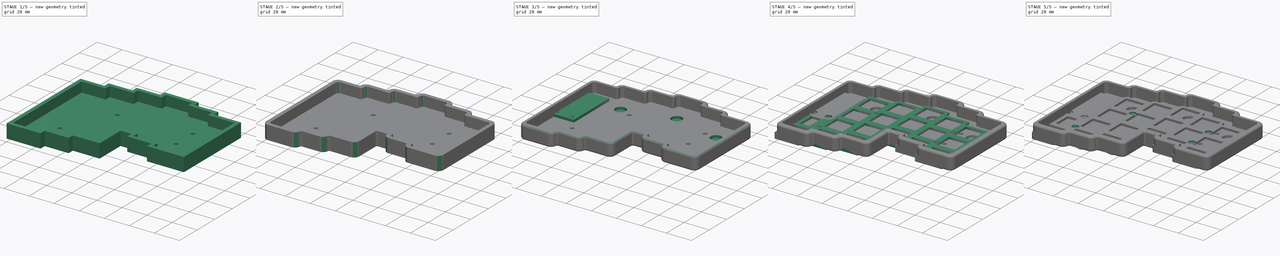
[diagram: build sequence overview — one tinted view per stage of 5, left to right]
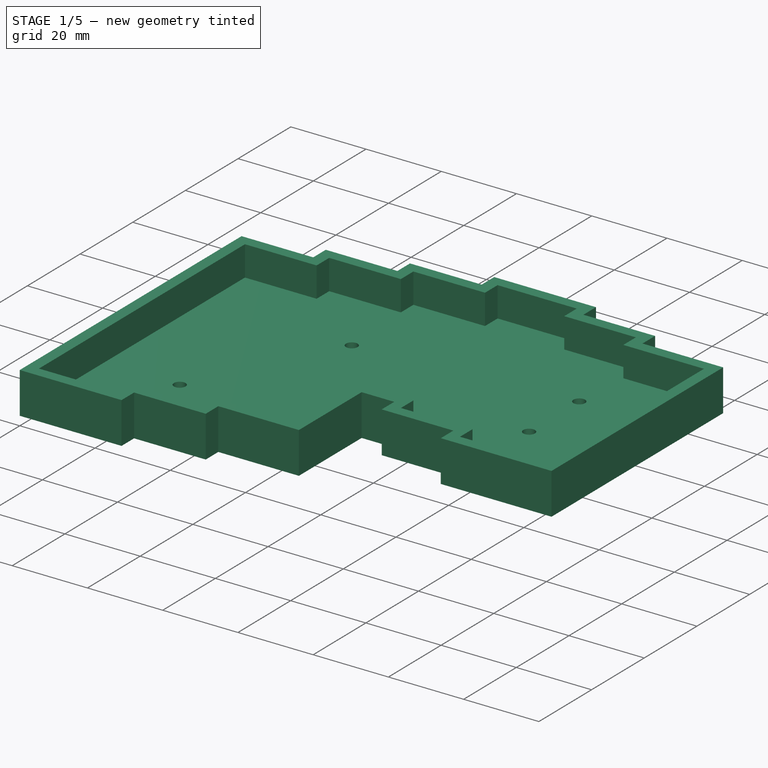
[diagram: stage 1 of 5 — iso view after this stage's code; geometry added in this stage tinted green]
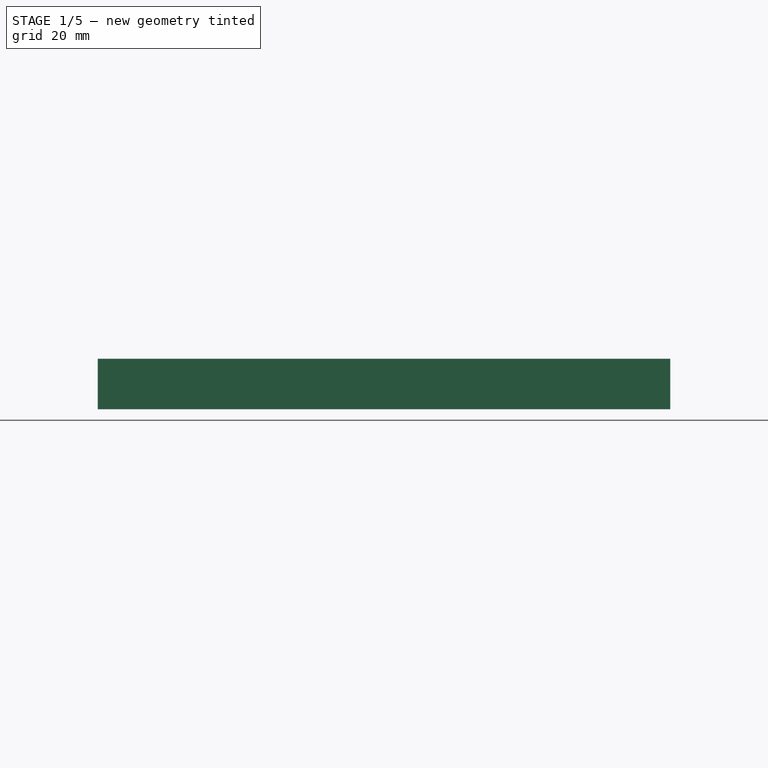
[diagram: stage 1 of 5 — front view after this stage's code; geometry added in this stage tinted green]
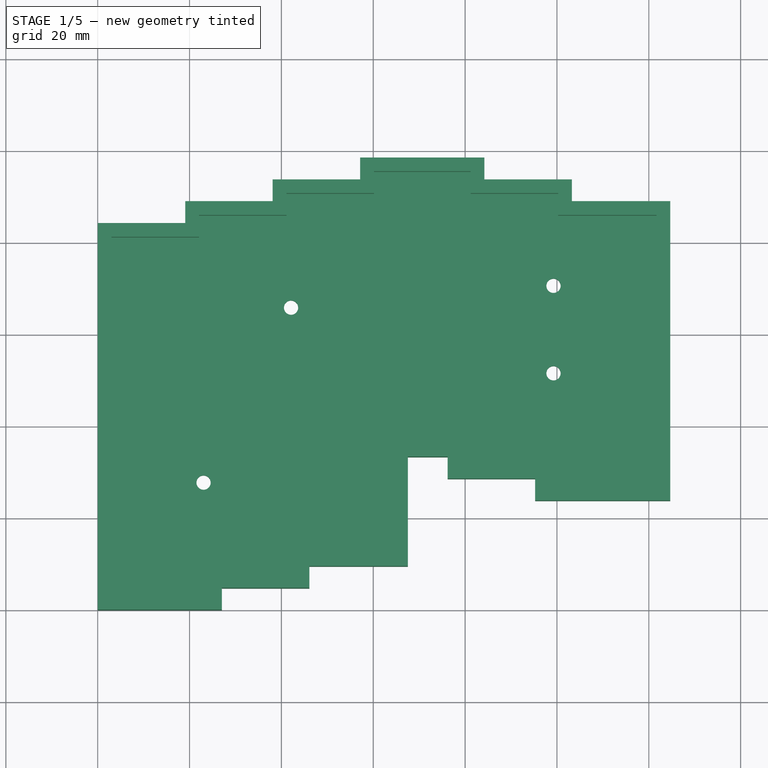
[diagram: stage 1 of 5 — top view after this stage's code; geometry added in this stage tinted green]
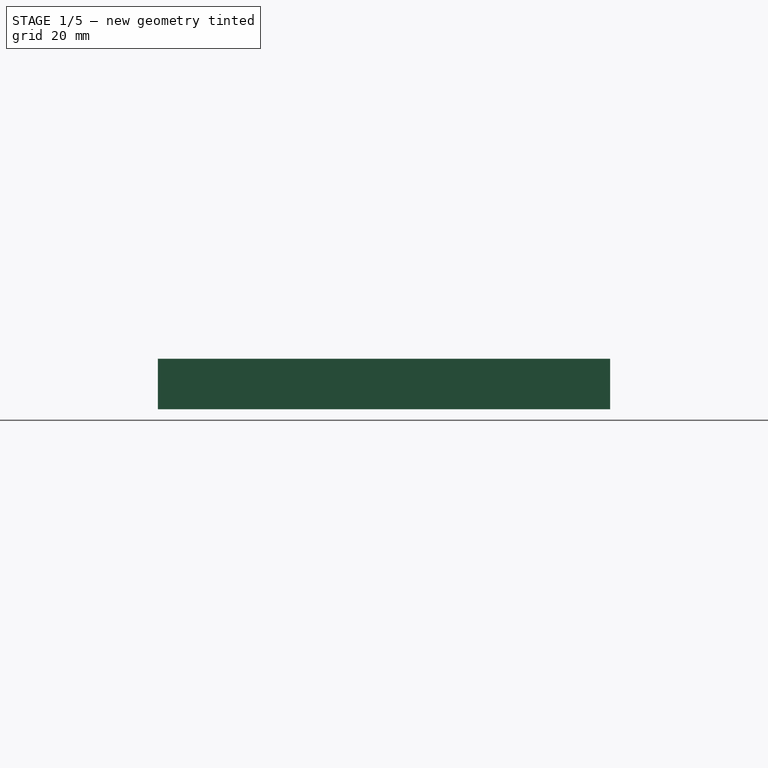
[diagram: stage 1 of 5 — right view after this stage's code; geometry added in this stage tinted green]
FCSTD DOCUMENT  (FreeCAD 0.19R)
Label: splitPCB
License: All rights reserved
LicenseURL: http://en.wikipedia.org/wiki/All_rights_reserved
objects: Sketcher::SketchObject×11, PartDesign::Pocket×9, PartDesign::Fillet×8, PartDesign::Pad×3, PartDesign::Body×3, Spreadsheet::Sheet×1, Part::Feature×1
note: 55 computed .brp shape members not serialized (recipe doc carries the construction recipe); baked Part::Feature solids carry a one-line shape summary decoded from their .brp

FEATURE [Sketcher::SketchObject] Sketch001
  FullyConstrained = true
  MapMode = 5
  Support = -> [XY_Plane001]
  expr: Constraints[65] = Spreadsheet.switch * 1.125 + 2 * (Spreadsheet.airgap + Spreadsheet.border)
  expr: Constraints[64] = Spreadsheet.switch * 1.125
  expr: Constraints[62] = Spreadsheet.switch + 2 * (Spreadsheet.airgap + Spreadsheet.border)
  expr: Constraints[61] = Spreadsheet.switch / 4
  expr: Constraints[63] = Spreadsheet.switch
  expr: Constraints[51] = Spreadsheet.switch * 3 + 2 * (Spreadsheet.airgap + Spreadsheet.border)
  expr: Constraints[52] = Spreadsheet.switch * 4 + 2 * (Spreadsheet.airgap + Spreadsheet.border)
  sketch-geometry (24):
    g0: LineSegment StartX=0 StartY=0 StartZ=0 EndX=27.05 EndY=0 EndZ=0
    g1: LineSegment StartX=27.05 StartY=0 StartZ=0 EndX=27.05 EndY=4.7625 EndZ=0
    g2: LineSegment StartX=27.05 StartY=4.7625 StartZ=0 EndX=46.1 EndY=4.7625 EndZ=0
    g3: LineSegment StartX=46.1 StartY=4.7625 StartZ=0 EndX=46.1 EndY=9.525 EndZ=0
    g4: LineSegment StartX=46.1 StartY=9.525 StartZ=0 EndX=67.5312 EndY=9.525 EndZ=0
    g5: LineSegment StartX=67.5312 StartY=9.525 StartZ=0 EndX=67.5312 EndY=33.3375 EndZ=0
    g6: LineSegment StartX=67.5312 StartY=33.3375 StartZ=0 EndX=76.2 EndY=33.3375 EndZ=0
    g7: LineSegment StartX=76.2 StartY=33.3375 StartZ=0 EndX=76.2 EndY=28.575 EndZ=0
    g8: LineSegment StartX=76.2 StartY=28.575 StartZ=0 EndX=95.25 EndY=28.575 EndZ=0
    g9: LineSegment StartX=95.25 StartY=28.575 StartZ=0 EndX=95.25 EndY=23.8125 EndZ=0
    g10: LineSegment StartX=95.25 StartY=23.8125 StartZ=0 EndX=124.681 EndY=23.8125 EndZ=0
    g11: LineSegment StartX=124.681 StartY=23.8125 StartZ=0 EndX=124.681 EndY=88.9625 EndZ=0
    g12: LineSegment StartX=124.681 StartY=88.9625 StartZ=0 EndX=103.25 EndY=88.9625 EndZ=0
    g13: LineSegment StartX=103.25 StartY=88.9625 StartZ=0 EndX=103.25 EndY=93.725 EndZ=0
    g14: LineSegment StartX=103.25 StartY=93.725 StartZ=0 EndX=84.2 EndY=93.725 EndZ=0
    g15: LineSegment StartX=84.2 StartY=93.725 StartZ=0 EndX=84.2 EndY=98.4875 EndZ=0
    g16: LineSegment StartX=84.2 StartY=98.4875 StartZ=0 EndX=57.15 EndY=98.4875 EndZ=0
    g17: LineSegment StartX=57.15 StartY=98.4875 StartZ=0 EndX=57.15 EndY=93.725 EndZ=0
    g18: LineSegment StartX=57.15 StartY=93.725 StartZ=0 EndX=38.1 EndY=93.725 EndZ=0
    g19: LineSegment StartX=38.1 StartY=93.725 StartZ=0 EndX=38.1 EndY=88.9625 EndZ=0
    g20: LineSegment StartX=38.1 StartY=88.9625 StartZ=0 EndX=19.05 EndY=88.9625 EndZ=0
    g21: LineSegment StartX=19.05 StartY=88.9625 StartZ=0 EndX=19.05 EndY=84.2 EndZ=0
    g22: LineSegment StartX=19.05 StartY=84.2 StartZ=0 EndX=0 EndY=84.2 EndZ=0
    g23: LineSegment StartX=0 StartY=84.2 StartZ=0 EndX=0 EndY=0 EndZ=0
  constraints (71):
    c: Horizontal(g0)
    c: Coincident(g1,g0)
    c: Vertical(g1)
    c: Coincident(g2,g1)
    c: Horizontal(g2)
    c: Coincident(g3,g2)
    c: Coincident(g4,g3)
    c: Horizontal(g4)
    c: Vertical(g5)
    c: Vertical(g3)
    c: Coincident(g4,g5)
    c: Coincident(g6,g5)
    c: Horizontal(g6)
    c: Coincident(g7,g6)
    c: Vertical(g7)
    c: Coincident(g8,g7)
    c: Horizontal(g8)
    c: Vertical(g9)
    c: Horizontal(g10)
    c: Coincident(g11,g10)
    c: Vertical(g11)
    c: Coincident(g10,g9)
    c: Coincident(g8,g9)
    c: Coincident(g12,g11)
    c: Horizontal(g12)
    c: Coincident(g13,g12)
    c: Vertical(g13)
    c: Coincident(g14,g13)
    c: Horizontal(g14)
    c: Coincident(g15,g14)
    c: Vertical(g15)
    c: Coincident(g16,g15)
    c: Horizontal(g16)
    c: Coincident(g17,g16)
    c: Vertical(g17)
    c: Coincident(g18,g17)
    c: Horizontal(g18)
    c: Coincident(g19,g18)
    c: Vertical(g19)
    c: Coincident(g20,g19)
    c: Horizontal(g20)
    c: Coincident(g21,g20)
    c: Vertical(g21)
    c: Coincident(g22,g21)
    c: Horizontal(g22)
    c: Coincident(g23,g22)
    c: Coincident(g23,g0)
    c: Vertical(g23)
    c: Equal(g0,g16)
    c: Equal(g18,g20)
    c: Equal(g20,g22)
    c: DistanceY(g11,g11) = 65.15
    c: DistanceY(g23,g23) = 84.2
    c: Equal(g13,g15)
    c: Equal(g15,g17)
    c: Equal(g17,g19)
    c: Equal(g19,g21)
    c: Equal(g21,g1)
    c: Equal(g1,g3)
    c: Equal(g3,g7)
    c: Equal(g7,g9)
    c: DistanceY(g13,g13) = 4.7625
    c: DistanceX(g0,g0) = 27.05
    c: DistanceX(g22,g22) = 19.05
    c: DistanceX(g12,g12) = 21.4313
    c: DistanceX(g10,g10) = 29.4313
    c: Equal(g14,g18)
    c: Equal(g22,g2)
    c: Coincident(g0,g-1)
    c: Equal(g2,g8)
    c: Equal(g12,g4)
FEATURE [PartDesign::Pad] Pad001
  Direction = (1,1,1)
  Length = 11
  Length2 = 100
  Profile = -> Sketch001
  Type = 0
  expr: Length = Spreadsheet.case_h
FEATURE [Sketcher::SketchObject] Sketch002
  FullyConstrained = true
  MapMode = 5
  Placement = pos=(0,0,11) rot=(0,0,1;0rad)
  Support = -> [Pad001]
  expr: Constraints[73] = Spreadsheet.switch * 1.125
  expr: Constraints[59] = Spreadsheet.switch / 4
  expr: Constraints[68] = Spreadsheet.switch + 2 * Spreadsheet.airgap
  expr: Constraints[70] = Spreadsheet.switch
  expr: Constraints[71] = Spreadsheet.switch * 1.25
  expr: Constraints[60] = Spreadsheet.switch * 4 + 2 * Spreadsheet.airgap
  expr: Constraints[72] = Spreadsheet.switch * 1.125 + Spreadsheet.airgap * 2
  expr: Constraints[67] = Spreadsheet.border
  sketch-geometry (26):
    g0: LineSegment StartX=3 StartY=3 StartZ=0 EndX=24.05 EndY=3 EndZ=0
    g1: LineSegment StartX=24.05 StartY=3 StartZ=0 EndX=24.05 EndY=7.7625 EndZ=0
    g2: LineSegment StartX=24.05 StartY=7.7625 StartZ=0 EndX=43.1 EndY=7.7625 EndZ=0
    g3: LineSegment StartX=43.1 StartY=7.7625 StartZ=0 EndX=43.1 EndY=12.525 EndZ=0
    g4: LineSegment StartX=43.1 StartY=12.525 StartZ=0 EndX=64.5312 EndY=12.525 EndZ=0
    g5: LineSegment StartX=64.5312 StartY=12.525 StartZ=0 EndX=64.5312 EndY=36.3375 EndZ=0
    g6: LineSegment StartX=64.5312 StartY=36.3375 StartZ=0 EndX=79.2 EndY=36.3375 EndZ=0
    g7: LineSegment StartX=79.2 StartY=36.3375 StartZ=0 EndX=79.2 EndY=31.575 EndZ=0
    g8: LineSegment StartX=79.2 StartY=31.575 StartZ=0 EndX=98.25 EndY=31.575 EndZ=0
    g9: LineSegment StartX=98.25 StartY=31.575 StartZ=0 EndX=98.25 EndY=26.8125 EndZ=0
    g10: LineSegment StartX=98.25 StartY=26.8125 StartZ=0 EndX=121.681 EndY=26.8125 EndZ=0
    g11: LineSegment StartX=121.681 StartY=26.8125 StartZ=0 EndX=121.681 EndY=85.9625 EndZ=0
    g12: LineSegment StartX=121.681 StartY=85.9625 StartZ=0 EndX=100.25 EndY=85.9625 EndZ=0
    g13: LineSegment StartX=100.25 StartY=85.9625 StartZ=0 EndX=100.25 EndY=90.725 EndZ=0
    g14: LineSegment StartX=100.25 StartY=90.725 StartZ=0 EndX=81.2 EndY=90.725 EndZ=0
    g15: LineSegment StartX=81.2 StartY=90.725 StartZ=0 EndX=81.2 EndY=95.4875 EndZ=0
    g16: LineSegment StartX=81.2 StartY=95.4875 StartZ=0 EndX=60.15 EndY=95.4875 EndZ=0
    g17: LineSegment StartX=60.15 StartY=95.4875 StartZ=0 EndX=60.15 EndY=90.725 EndZ=0
    g18: LineSegment StartX=60.15 StartY=90.725 StartZ=0 EndX=41.1 EndY=90.725 EndZ=0
    g19: LineSegment StartX=41.1 StartY=90.725 StartZ=0 EndX=41.1 EndY=85.9625 EndZ=0
    g20: LineSegment StartX=41.1 StartY=85.9625 StartZ=0 EndX=22.05 EndY=85.9625 EndZ=0
    g21: LineSegment StartX=22.05 StartY=85.9625 StartZ=0 EndX=22.05 EndY=81.2 EndZ=0
    g22: LineSegment StartX=22.05 StartY=81.2 StartZ=0 EndX=3 EndY=81.2 EndZ=0
    g23: LineSegment StartX=3 StartY=81.2 StartZ=0 EndX=3 EndY=3 EndZ=0
    g24: LineSegment StartX=3 StartY=3 StartZ=0 EndX=3 EndY=0 EndZ=0
    g25: LineSegment StartX=3 StartY=0 StartZ=0 EndX=0 EndY=0 EndZ=0
  constraints (77):
    c: Horizontal(g0)
    c: Coincident(g1,g0)
    c: Vertical(g1)
    c: Coincident(g2,g1)
    c: Horizontal(g2)
    c: Coincident(g3,g2)
    c: Vertical(g3)
    c: Coincident(g4,g3)
    c: Horizontal(g4)
    c: Coincident(g5,g4)
    c: Vertical(g5)
    c: Coincident(g6,g5)
    c: Horizontal(g6)
    c: Coincident(g7,g6)
    c: Vertical(g7)
    c: Coincident(g8,g7)
    c: Horizontal(g8)
    c: Coincident(g9,g8)
    c: Coincident(g10,g9)
    c: Horizontal(g10)
    c: Coincident(g11,g10)
    c: Vertical(g11)
    c: Coincident(g12,g11)
    c: Horizontal(g12)
    c: Coincident(g13,g12)
    c: Coincident(g14,g13)
    c: Coincident(g15,g14)
    c: Coincident(g16,g15)
    c: Horizontal(g16)
    c: Coincident(g17,g16)
    c: Vertical(g17)
    c: Coincident(g18,g17)
    c: Horizontal(g18)
    c: Coincident(g19,g18)
    c: Coincident(g20,g19)
    c: Horizontal(g20)
    c: Coincident(g21,g20)
    c: Vertical(g21)
    c: Coincident(g22,g21)
    c: Horizontal(g22)
    c: Coincident(g23,g22)
    c: Vertical(g23)
    c: Vertical(g9)
    c: Vertical(g13)
    c: Vertical(g15)
    c: Vertical(g19)
    c: Horizontal(g14)
    c: Equal(g8,g14)
    c: Equal(g14,g18)
    c: Equal(g18,g20)
    c: Equal(g0,g16)
    c: Equal(g17,g19)
    c: Equal(g19,g21)
    c: Equal(g21,g15)
    c: Equal(g15,g13)
    c: Equal(g13,g9)
    c: Equal(g9,g7)
    c: Equal(g7,g3)
    c: Equal(g3,g1)
    c: DistanceY(g19,g19) = 4.7625
    c: DistanceY(g23,g23) = 78.2
    c: Coincident(g24,g0)
    c: Coincident(g25,g24)
    c: Coincident(g25,g-1)
    c: Equal(g25,g24)
    c: Horizontal(g25)
    c: Vertical(g24)
    c: DistanceY(g24,g24) = 3
    c: DistanceX(g0,g0) = 21.05
    c: Coincident(g0,g23)
    c: DistanceX(g20,g20) = 19.05
    c: DistanceY(g5,g5) = 23.8125
    c: DistanceX(g10,g10) = 23.4313
    c: DistanceX(g12,g12) = 21.4313
    c: Equal(g22,g20)
    c: Equal(g4,g12)
    c: Equal(g2,g20)
FEATURE [PartDesign::Pocket] Pocket
  BaseFeature = -> Pad001
  Length = 8
  Length2 = 100
  Profile = -> Sketch001
  Type = 0
  expr: Length = Spreadsheet.case_h - Spreadsheet.case_bottom
FEATURE [PartDesign::Pocket] Pocket001
  BaseFeature = -> Pocket
  Length = 8
  Length2 = 100
  Profile = -> Sketch002
  Type = 0
  expr: Length = Spreadsheet.case_h - Spreadsheet.case_bottom
FEATURE [Part::Feature] Feature  label="PCBstream"
  Placement = pos=(-69.8,144.4,4.3) rot=(0,0,1;0rad)
  shape: bbox 116.7 x 90.49 x 21.49 mm, 18937 faces, 203 solids (baked)
FEATURE [Sketcher::SketchObject] Sketch003
  FullyConstrained = true
  MapMode = 5
  Placement = pos=(0,0,3) rot=(0,0,1;0rad)
  Support = -> [Pocket001]
  expr: Constraints[33] = Spreadsheet.switch / 4
  expr: Constraints[13] = Spreadsheet.insert
  expr: Constraints[11] = Spreadsheet.switch * 1.25
  sketch-geometry (16):
    g0: LineSegment StartX=0 StartY=0 StartZ=0 EndX=4 EndY=0 EndZ=0
    g1: LineSegment StartX=4 StartY=0 StartZ=0 EndX=4 EndY=4 EndZ=0
    g2: LineSegment StartX=4 StartY=4 StartZ=0 EndX=23.05 EndY=4 EndZ=0
    g3: LineSegment StartX=23.05 StartY=4 StartZ=0 EndX=23.05 EndY=27.8125 EndZ=0
    g4: Circle CenterX=23.05 CenterY=27.8125 CenterZ=0 NormalX=0 NormalY=0 NormalZ=1 AngleXU=0 Radius=1.55
    g5: LineSegment StartX=23.05 StartY=27.8125 StartZ=0 EndX=42.1 EndY=27.8125 EndZ=0
    g6: LineSegment StartX=42.1 StartY=27.8125 StartZ=0 EndX=42.1 EndY=46.8625 EndZ=0
    g7: LineSegment StartX=42.1 StartY=46.8625 StartZ=0 EndX=42.1 EndY=65.9125 EndZ=0
    g8: Circle CenterX=42.1 CenterY=65.9125 CenterZ=0 NormalX=0 NormalY=0 NormalZ=1 AngleXU=0 Radius=1.55
    g9: LineSegment StartX=42.1 StartY=65.9125 StartZ=0 EndX=61.15 EndY=65.9125 EndZ=0
    g10: LineSegment StartX=61.15 StartY=65.9125 StartZ=0 EndX=80.2 EndY=65.9125 EndZ=0
    g11: LineSegment StartX=80.2 StartY=65.9125 StartZ=0 EndX=99.25 EndY=65.9125 EndZ=0
    g12: LineSegment StartX=99.25 StartY=65.9125 StartZ=0 EndX=99.25 EndY=70.675 EndZ=0
    g13: Circle CenterX=99.25 CenterY=70.675 CenterZ=0 NormalX=0 NormalY=0 NormalZ=1 AngleXU=0 Radius=1.55
    g14: Circle CenterX=99.25 CenterY=51.625 CenterZ=0 NormalX=0 NormalY=0 NormalZ=1 AngleXU=0 Radius=1.55
    g15: LineSegment StartX=99.25 StartY=70.675 StartZ=0 EndX=99.25 EndY=51.625 EndZ=0
  constraints (44):
    c: Coincident(g0,g-1)
    c: Coincident(g1,g0)
    c: Equal(g0,g1)
    c: Horizontal(g0)
    c: Vertical(g1)
    c: DistanceY(g1,g1) = 4
    c: Coincident(g2,g1)
    c: Horizontal(g2)
    c: DistanceX(g2,g2) = 19.05  '='
    c: Coincident(g3,g2)
    c: Vertical(g3)
    c: DistanceY(g3,g3) = 23.8125
    c: Coincident(g4,g3)
    c: Diameter(g4) = 3.1
    c: Coincident(g5,g4)
    c: Horizontal(g5)
    c: Coincident(g6,g5)
    c: Vertical(g6)
    c: Coincident(g7,g6)
    c: Vertical(g7)
    c: Equal(g2,g5)
    c: Equal(g5,g6)
    c: Equal(g6,g7)
    c: Coincident(g8,g7)
    c: Coincident(g9,g8)
    c: Horizontal(g9)
    c: Coincident(g10,g9)
    c: Coincident(g11,g10)
    c: Horizontal(g11)
    c: Coincident(g12,g11)
    c: Vertical(g12)
    c: Equal(g9,g10)
    c: Equal(g10,g11)
    c: DistanceY(g12,g12) = 4.7625
    c: Coincident(g13,g12)
    c: Equal(g8,g13)
    c: Equal(g13,g14)
    c: Equal(g14,g4)
    c: Equal(g9,g7)
    c: Coincident(g15,g13)
    c: Coincident(g15,g14)
    c: Vertical(g15)
    c: Equal(g15,g7)
    c: Horizontal(g10)
FEATURE [PartDesign::Pocket] Pocket002
  BaseFeature = -> Pocket001
  Length = 3
  Length2 = 100
  Profile = -> Sketch003
  Type = 0
  expr: Length = Spreadsheet.case_bottom
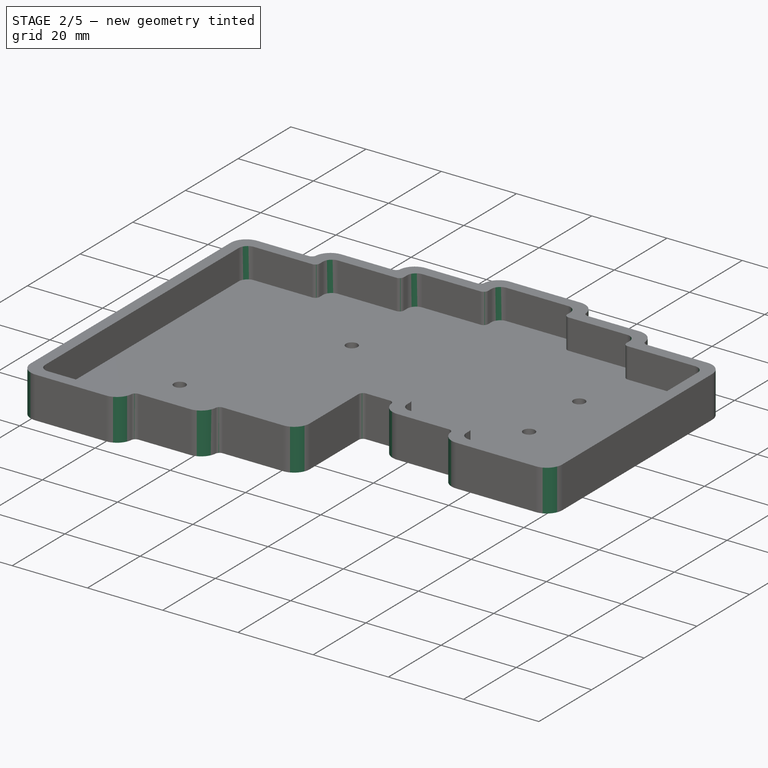
[diagram: stage 2 of 5 — iso view after this stage's code; geometry added in this stage tinted green]
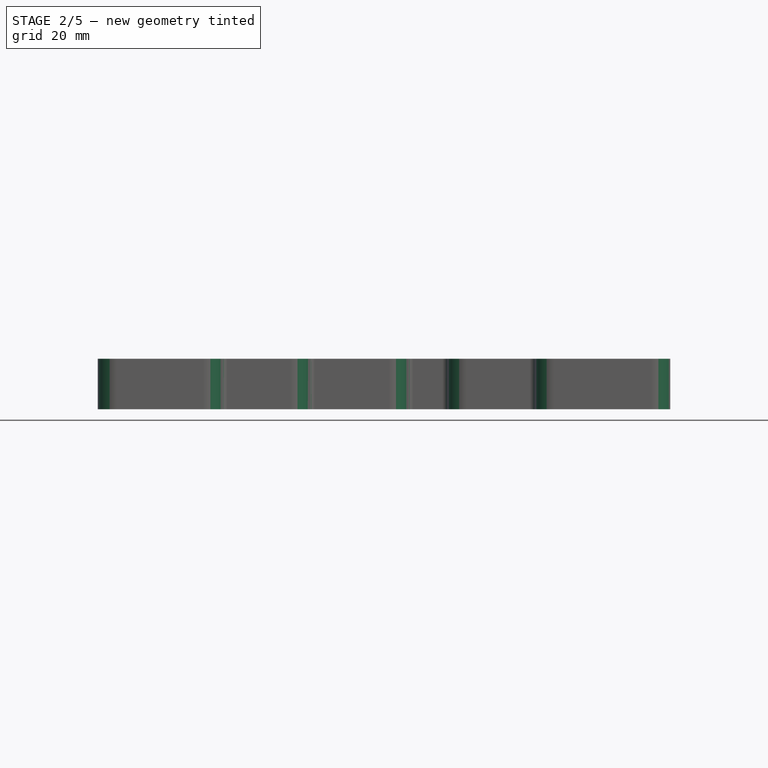
[diagram: stage 2 of 5 — front view after this stage's code; geometry added in this stage tinted green]
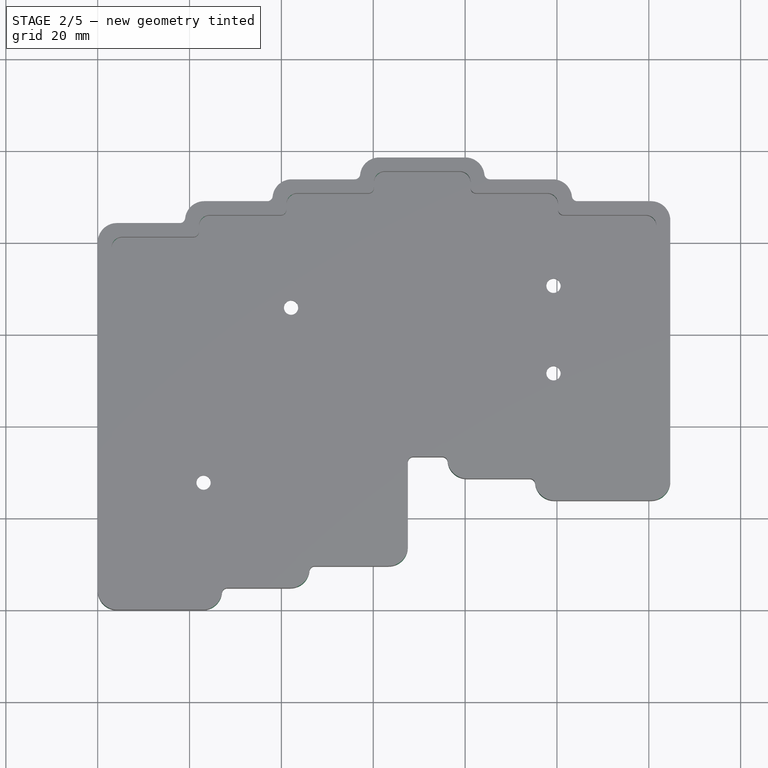
[diagram: stage 2 of 5 — top view after this stage's code; geometry added in this stage tinted green]
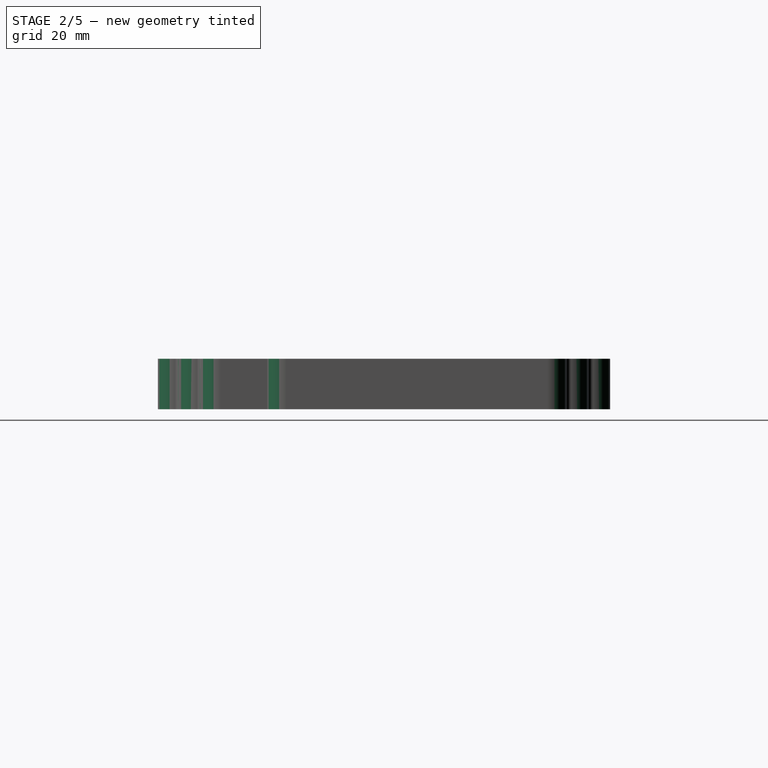
[diagram: stage 2 of 5 — right view after this stage's code; geometry added in this stage tinted green]
FEATURE [Sketcher::SketchObject] Sketch005
  FullyConstrained = true
  MapMode = 5
  Placement = pos=(0,0,0) rot=(1,0,0;3.14159rad)
  Support = -> [Pocket002]
  expr: Constraints[40] = Spreadsheet.switch / 4 - Spreadsheet.feet / 2
  expr: Constraints[35] = Spreadsheet.switch * 2.625 - Spreadsheet.feet / 2
  expr: Constraints[51] = Spreadsheet.switch / 2
  expr: Constraints[30] = Spreadsheet.switch * 0.75 - Spreadsheet.feet / 2
  expr: Constraints[41] = Spreadsheet.switch * 2.75 - Spreadsheet.feet / 2
  expr: Constraints[27] = Spreadsheet.switch * 3.5
  expr: Constraints[48] = Spreadsheet.switch * 3.125
  expr: Constraints[16] = Spreadsheet.switch * 4
  expr: Constraints[11] = Spreadsheet.feet / 2
  expr: Constraints[5] = Spreadsheet.airgap + Spreadsheet.border
  sketch-geometry (22):
    g0: LineSegment StartX=0 StartY=0 StartZ=0 EndX=4 EndY=0 EndZ=0
    g1: LineSegment StartX=4 StartY=0 StartZ=0 EndX=4 EndY=-4 EndZ=0
    g2: LineSegment StartX=4 StartY=-4 StartZ=0 EndX=4 EndY=-7 EndZ=0
    g3: LineSegment StartX=4 StartY=-7 StartZ=0 EndX=7 EndY=-7 EndZ=0
    g4: Circle CenterX=7 CenterY=-7 CenterZ=0 NormalX=0 NormalY=0 NormalZ=1 AngleXU=0 Radius=3
    g5: LineSegment StartX=4 StartY=-4 StartZ=0 EndX=4 EndY=-80.2 EndZ=0
    g6: LineSegment StartX=4 StartY=-80.2 StartZ=0 EndX=4 EndY=-77.2 EndZ=0
    g7: LineSegment StartX=4 StartY=-77.2 StartZ=0 EndX=7 EndY=-77.2 EndZ=0
    g8: Circle CenterX=7 CenterY=-77.2 CenterZ=0 NormalX=0 NormalY=0 NormalZ=1 AngleXU=0 Radius=3
    g9: LineSegment StartX=4 StartY=-80.2 StartZ=0 EndX=70.675 EndY=-80.2 EndZ=0
    g10: LineSegment StartX=70.675 StartY=-80.2 StartZ=0 EndX=70.675 EndY=-91.4875 EndZ=0
    g11: Circle CenterX=70.675 CenterY=-91.4875 CenterZ=0 NormalX=0 NormalY=0 NormalZ=1 AngleXU=0 Radius=3
    g12: LineSegment StartX=70.675 StartY=-80.2 StartZ=0 EndX=117.681 EndY=-80.2 EndZ=0
    g13: LineSegment StartX=117.681 StartY=-80.2 StartZ=0 EndX=117.681 EndY=-81.9625 EndZ=0
    g14: LineSegment StartX=117.681 StartY=-80.2 StartZ=0 EndX=117.681 EndY=-30.8125 EndZ=0
    g15: Circle CenterX=117.681 CenterY=-81.9625 CenterZ=0 NormalX=0 NormalY=0 NormalZ=1 AngleXU=0 Radius=3
    g16: Circle CenterX=117.681 CenterY=-30.8125 CenterZ=0 NormalX=0 NormalY=0 NormalZ=1 AngleXU=0 Radius=3
    g17: LineSegment StartX=4 StartY=-4 StartZ=0 EndX=63.5312 EndY=-4 EndZ=0
    g18: LineSegment StartX=63.5312 StartY=-4 StartZ=0 EndX=63.5312 EndY=-13.525 EndZ=0
    g19: LineSegment StartX=63.5312 StartY=-13.525 StartZ=0 EndX=60.5312 EndY=-13.525 EndZ=0
    g20: LineSegment StartX=60.5312 StartY=-13.525 StartZ=0 EndX=60.5312 EndY=-16.525 EndZ=0
    g21: Circle CenterX=60.5312 CenterY=-16.525 CenterZ=0 NormalX=0 NormalY=0 NormalZ=1 AngleXU=0 Radius=3
  constraints (60):
    c: Coincident(g0,g-1)
    c: PointOnObject(g0,g-1)
    c: Coincident(g1,g0)
    c: Vertical(g1)
    c: Equal(g0,g1)
    c: DistanceY(g1,g1) = 4
    c: Coincident(g2,g1)
    c: Vertical(g2)
    c: Coincident(g3,g2)
    c: Horizontal(g3)
    c: Equal(g3,g2)
    c: DistanceY(g2,g2) = 3
    c: Coincident(g4,g3)
    c: PointOnObject(g2,g4)
    c: Coincident(g5,g1)
    c: Vertical(g5)
    c: DistanceY(g5,g5) = 76.2
    c: Coincident(g6,g5)
    c: Coincident(g7,g6)
    c: Horizontal(g7)
    c: Equal(g6,g7)
    c: Vertical(g6)
    c: Equal(g3,g7)
    c: Coincident(g8,g7)
    c: Equal(g8,g4)
    c: Coincident(g9,g5)
    c: Tangent(g9,g8)
    c: DistanceX(g9,g9) = 66.675
    c: Coincident(g10,g9)
    c: Vertical(g10)
    c: DistanceY(g10,g10) = 11.2875
    c: Coincident(g11,g10)
    c: Equal(g11,g8)
    c: Coincident(g12,g9)
    c: Horizontal(g12)
    c: DistanceX(g12,g12) = 47.0063
    c: Coincident(g13,g12)
    c: Vertical(g13)
    c: Coincident(g14,g12)
    c: Vertical(g14)
    c: DistanceY(g13,g13) = 1.7625
    c: DistanceY(g14,g14) = 49.3875
    c: Coincident(g15,g13)
    c: Coincident(g16,g14)
    c: Equal(g16,g15)
    c: Equal(g15,g11)
    c: Coincident(g17,g1)
    c: Horizontal(g17)
    c: DistanceX(g17,g17) = 59.5312
    c: Coincident(g18,g17)
    c: Vertical(g18)
    c: DistanceY(g18,g18) = 9.525
    c: Coincident(g19,g18)
    c: Coincident(g20,g19)
    c: Vertical(g20)
    c: Horizontal(g19)
    c: Equal(g19,g20)
    c: Equal(g20,g3)
    c: Coincident(g21,g20)
    c: Equal(g21,g16)
FEATURE [PartDesign::Pocket] Pocket004
  BaseFeature = -> Pocket002
  Length = 1.5
  Length2 = 100
  Profile = -> Sketch005
  Type = 0
  expr: Length = Spreadsheet.case_bottom / 2
FEATURE [PartDesign::Fillet] Fillet002
  Base = -> Pocket004 [Edge166,Edge162,Edge156,Edge152,Edge144,Edge140,Edge138,Edge134,Edge130,Edge8,Edge90,Edge94,Edge96,Edge100,Edge105,Edge101,Edge95,Edge91,Edge87,Edge170]
  BaseFeature = -> Pocket004
  Radius = 1.19063
  SupportTransform = false
  expr: Radius = Spreadsheet.switch / 16
FEATURE [PartDesign::Fillet] Fillet003
  Base = -> Fillet002 [Edge172,Edge168,Edge176,Edge188,Edge200,Edge212,Edge216,Edge228,Edge226,Edge222,Edge218,Edge206,Edge186,Edge174]
  BaseFeature = -> Fillet002
  Radius = 2.38125
  SupportTransform = false
  expr: Radius = Spreadsheet.switch / 8
FEATURE [PartDesign::Body] Body  label="Plate"
  Group = -> [Sketch,Pad,Sketch004,Pocket003,Fillet,Fillet001,Sketch006,Pocket005]
  Origin = -> Origin
  Placement = pos=(4,4,6.3) rot=(0,0,1;0rad)
  Tip = -> Pocket005
  expr: .Placement.Base.z = Spreadsheet.case_h - Spreadsheet.plate
  expr: .Placement.Base.y = Spreadsheet.border + Spreadsheet.airgap
  expr: .Placement.Base.x = Spreadsheet.border + Spreadsheet.airgap
FEATURE [PartDesign::Fillet] Fillet004
  Base = -> Fillet003 [Edge187,Edge181,Edge184,Edge199,Edge219,Edge231,Edge234,Edge238,Edge241,Edge228,Edge225,Edge213,Edge201,Edge188]
  BaseFeature = -> Fillet003
  Radius = 4.19062
  SupportTransform = false
  expr: Radius = Spreadsheet.switch / 16 + Spreadsheet.border
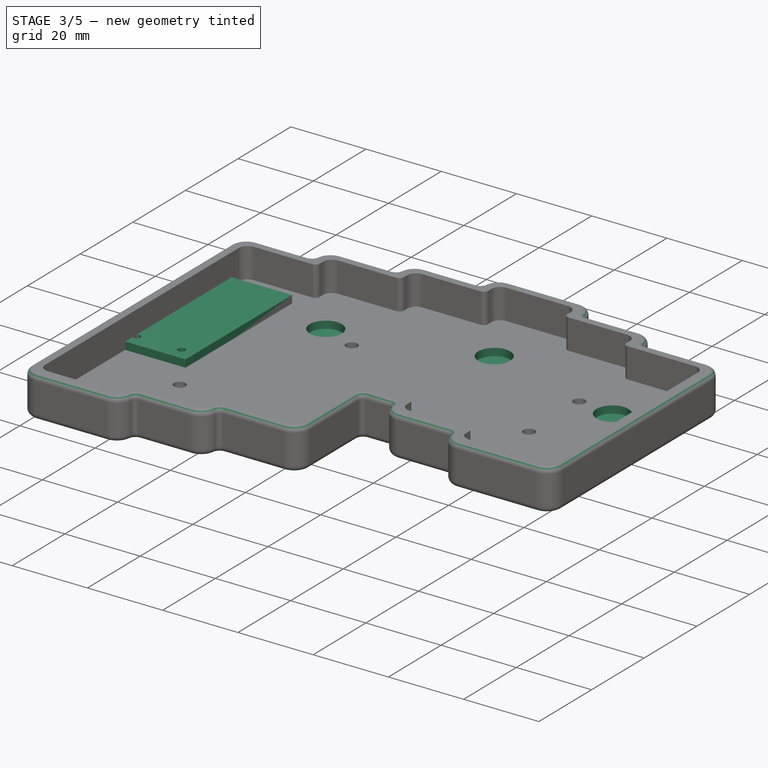
[diagram: stage 3 of 5 — iso view after this stage's code; geometry added in this stage tinted green]
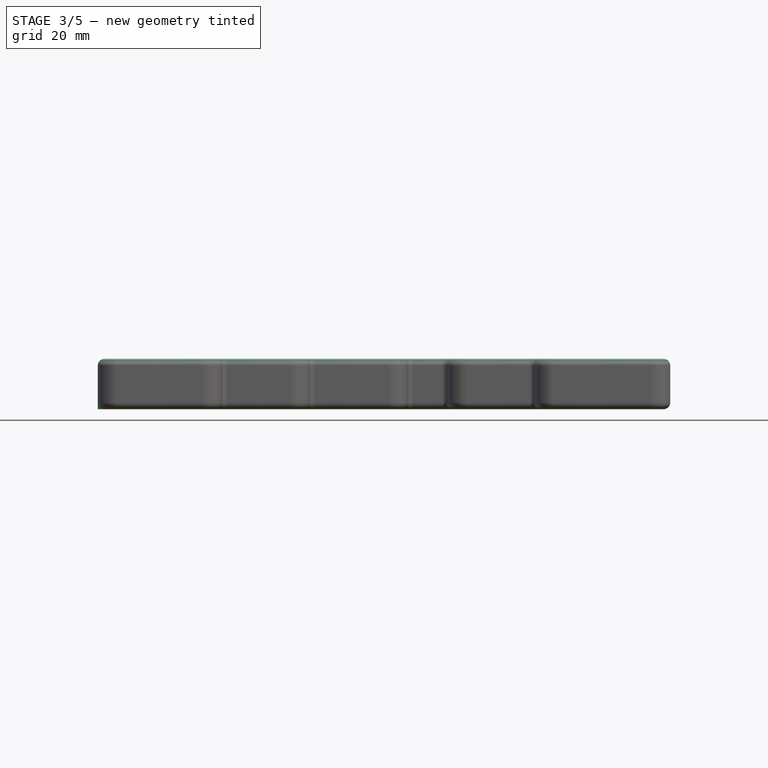
[diagram: stage 3 of 5 — front view after this stage's code; geometry added in this stage tinted green]
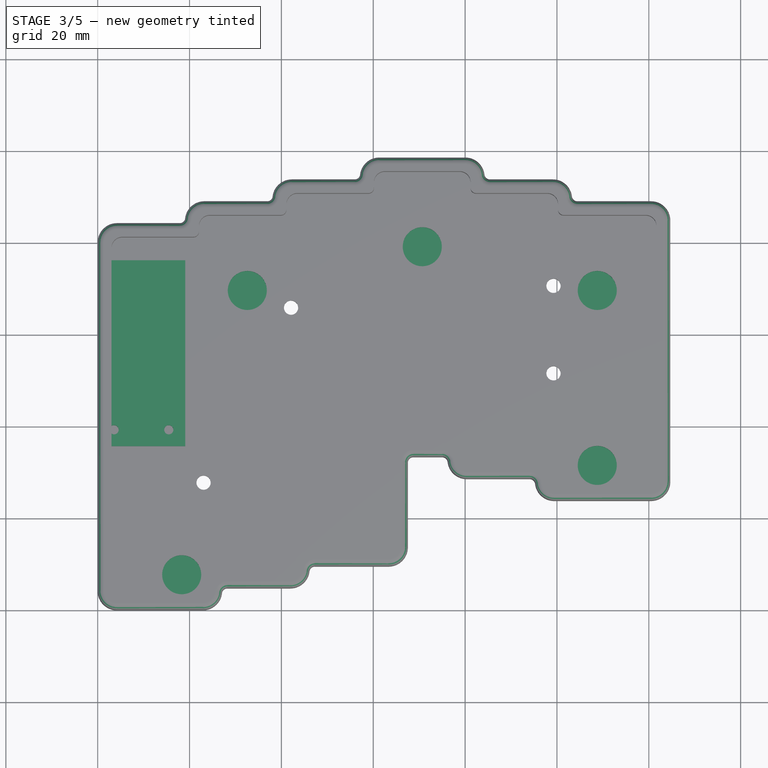
[diagram: stage 3 of 5 — top view after this stage's code; geometry added in this stage tinted green]
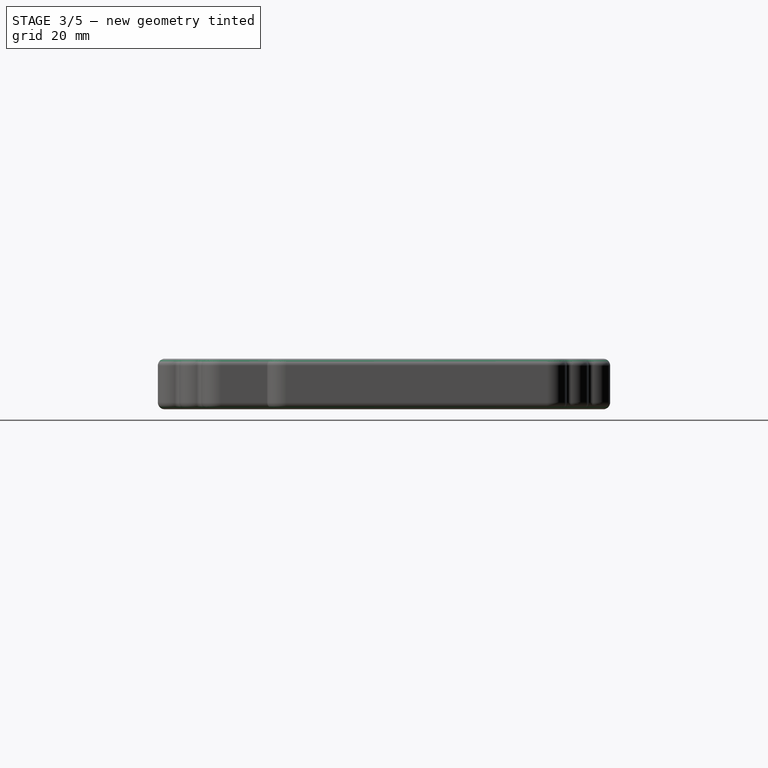
[diagram: stage 3 of 5 — right view after this stage's code; geometry added in this stage tinted green]
FEATURE [PartDesign::Fillet] Fillet005
  Base = -> Fillet004 [Edge13,Edge122,Edge95]
  BaseFeature = -> Fillet004
  Radius = 1.5
  SupportTransform = false
  expr: Radius = Spreadsheet.border / 2
FEATURE [Sketcher::SketchObject] Sketch007
  FullyConstrained = true
  MapMode = 5
  Support = -> [XY_Plane002]
  expr: Constraints[8] = 30 / 16 * Spreadsheet.switch
  expr: Constraints[16] = Spreadsheet.switch * 3 / 16
  expr: Constraints[9] = Spreadsheet.switch
  expr: Constraints[11] = 34 / 16 * Spreadsheet.switch
  expr: Constraints[15] = Spreadsheet.switch * 10 / 16
  sketch-geometry (8):
    g0: LineSegment StartX=19.05 StartY=35.7188 StartZ=0 EndX=19.05 EndY=76.2 EndZ=0
    g1: LineSegment StartX=19.05 StartY=76.2 StartZ=0 EndX=0 EndY=76.2 EndZ=0
    g2: LineSegment StartX=0 StartY=76.2 StartZ=0 EndX=0 EndY=35.7188 EndZ=0
    g3: LineSegment StartX=0 StartY=35.7188 StartZ=0 EndX=19.05 EndY=35.7188 EndZ=0
    g4: Circle CenterX=3.57188 CenterY=39.2906 CenterZ=0 NormalX=0 NormalY=0 NormalZ=1 AngleXU=0 Radius=1
    g5: Circle CenterX=15.4781 CenterY=39.2906 CenterZ=0 NormalX=0 NormalY=0 NormalZ=1 AngleXU=0 Radius=1
    g6: LineSegment StartX=3.57188 StartY=39.2906 StartZ=0 EndX=0 EndY=35.7188 EndZ=0
    g7: LineSegment StartX=15.4781 StartY=39.2906 StartZ=0 EndX=19.05 EndY=35.7188 EndZ=0
  constraints (22):
    c: Vertical(g0)
    c: Coincident(g1,g0)
    c: Horizontal(g1)
    c: Coincident(g2,g1)
    c: Vertical(g2)
    c: Coincident(g3,g2)
    c: Coincident(g3,g0)
    c: Horizontal(g3)
    c: DistanceY(g-1,g2) = 35.7188
    c: DistanceX(g3,g3) = 19.05
    c: PointOnObject(g2,g-2)
    c: DistanceY(g2,g2) = 40.4813
    c: Diameter(g5) = 2
    c: Equal(g5,g4)
    c: Horizontal(g4,g5)
    c: DistanceX(g4,g5) = 11.9062
    c: DistanceY(g0,g5) = 3.57188
    c: Coincident(g6,g4)
    c: Coincident(g6,g2)
    c: Coincident(g7,g5)
    c: Coincident(g7,g0)
    c: Equal(g6,g7)
FEATURE [PartDesign::Pad] Pad002
  Direction = (1,1,1)
  Length = 5
  Length2 = 100
  Profile = -> Sketch007
  Type = 0
FEATURE [Sketcher::SketchObject] Sketch008
  FullyConstrained = true
  MapMode = 5
  Placement = pos=(0,0,0) rot=(0.57735,-0.57735,-0.57735;2.0944rad)
  Support = -> [Pad002]
  expr: Constraints[2] = 36 / 16 * Spreadsheet.switch
  expr: Constraints[13] = Spreadsheet.switch / 16 * 28
  sketch-geometry (5):
    g0: LineSegment StartX=0 StartY=0 StartZ=0 EndX=-42.8625 EndY=0 EndZ=0
    g1: LineSegment StartX=-42.8625 StartY=0 StartZ=0 EndX=-76.2 EndY=0 EndZ=0
    g2: LineSegment StartX=-76.2 StartY=0 StartZ=0 EndX=-76.2 EndY=2 EndZ=0
    g3: LineSegment StartX=-76.2 StartY=2 StartZ=0 EndX=-42.8625 EndY=2 EndZ=0
    g4: LineSegment StartX=-42.8625 StartY=2 StartZ=0 EndX=-42.8625 EndY=0 EndZ=0
  constraints (14):
    c: Coincident(g0,g-1)
    c: Horizontal(g0)
    c: DistanceX(g0,g0) = 42.8625
    c: Coincident(g1,g2)
    c: Coincident(g2,g3)
    c: Coincident(g3,g4)
    c: Coincident(g4,g1)
    c: Horizontal(g1)
    c: Horizontal(g3)
    c: Vertical(g2)
    c: Vertical(g4)
    c: Coincident(g1,g0)
    c: DistanceY(g2,g2) = 2
    c: DistanceX(g1,g1) = 33.3375
FEATURE [PartDesign::Pocket] Pocket006
  BaseFeature = -> Pad002
  Length = 5
  Length2 = 100
  Profile = -> Sketch008
  Type = 1
FEATURE [PartDesign::Body] Body002  label="Cover"
  Group = -> [Sketch007,Pad002,Sketch008,Pocket006,Sketch009,Pocket007,Fillet006,Fillet007]
  Origin = -> Origin002
  Placement = pos=(4,4,13) rot=(0,0,1;0rad)
  Tip = -> Fillet007
FEATURE [Sketcher::SketchObject] Sketch010
  FullyConstrained = true
  MapMode = 5
  Placement = pos=(0,0,3) rot=(0,0,1;0rad)
  Support = -> [Fillet005]
  expr: Constraints[41] = Spreadsheet.switch / 2
  expr: Constraints[6] = Spreadsheet.border + (Spreadsheet.airgap + Spreadsheet.magnet_d) / 2
  expr: Constraints[8] = Spreadsheet.switch
  expr: Constraints[52] = Spreadsheet.switch / 4
  expr: Constraints[10] = Spreadsheet.switch / 4
  expr: Constraints[5] = Spreadsheet.airgap + Spreadsheet.border + Spreadsheet.switch / 2
  sketch-geometry (20):
    g0: Circle CenterX=18.2875 CenterY=7.75 CenterZ=0 NormalX=0 NormalY=0 NormalZ=1 AngleXU=0 Radius=4.25
    g1: LineSegment StartX=0 StartY=0 StartZ=0 EndX=13.525 EndY=0 EndZ=0
    g2: LineSegment StartX=13.525 StartY=0 StartZ=0 EndX=13.525 EndY=7.75 EndZ=0
    g3: LineSegment StartX=13.525 StartY=7.75 StartZ=0 EndX=32.575 EndY=7.75 EndZ=0
    g4: LineSegment StartX=32.575 StartY=7.75 StartZ=0 EndX=32.575 EndY=12.5125 EndZ=0
    g5: LineSegment StartX=32.575 StartY=12.5125 StartZ=0 EndX=32.575 EndY=31.5625 EndZ=0
    g6: LineSegment StartX=32.575 StartY=31.5625 StartZ=0 EndX=32.575 EndY=50.6125 EndZ=0
    g7: LineSegment StartX=32.575 StartY=50.6125 StartZ=0 EndX=32.575 EndY=69.6625 EndZ=0
    g8: LineSegment StartX=32.575 StartY=69.6625 StartZ=0 EndX=51.625 EndY=69.6625 EndZ=0
    g9: LineSegment StartX=51.625 StartY=69.6625 StartZ=0 EndX=70.675 EndY=69.6625 EndZ=0
    g10: LineSegment StartX=70.675 StartY=69.6625 StartZ=0 EndX=70.675 EndY=79.1875 EndZ=0
    g11: LineSegment StartX=70.675 StartY=69.6625 StartZ=0 EndX=89.725 EndY=69.6625 EndZ=0
    g12: LineSegment StartX=89.725 StartY=69.6625 StartZ=0 EndX=108.775 EndY=69.6625 EndZ=0
    g13: LineSegment StartX=108.775 StartY=69.6625 StartZ=0 EndX=108.775 EndY=50.6125 EndZ=0
    g14: LineSegment StartX=108.775 StartY=50.6125 StartZ=0 EndX=108.775 EndY=31.5625 EndZ=0
    g15: Circle CenterX=32.575 CenterY=69.6625 CenterZ=0 NormalX=0 NormalY=0 NormalZ=1 AngleXU=0 Radius=4.25
    g16: Circle CenterX=70.675 CenterY=79.1875 CenterZ=0 NormalX=0 NormalY=0 NormalZ=1 AngleXU=0 Radius=4.25
    g17: Circle CenterX=108.775 CenterY=69.6625 CenterZ=0 NormalX=0 NormalY=0 NormalZ=1 AngleXU=0 Radius=4.25
    g18: Circle CenterX=108.775 CenterY=31.5625 CenterZ=0 NormalX=0 NormalY=0 NormalZ=1 AngleXU=0 Radius=4.25
    g19: LineSegment StartX=13.525 StartY=7.75 StartZ=0 EndX=18.2875 EndY=7.75 EndZ=0
  constraints (55):
    c: Diameter(g0) = 8.5
    c: Coincident(g1,g-1)
    c: Coincident(g2,g1)
    c: Vertical(g2)
    c: Horizontal(g1)
    c: DistanceX(g1,g1) = 13.525
    c: DistanceY(g2,g2) = 7.75
    c: Horizontal(g3)
    c: DistanceX(g3,g3) = 19.05
    c: Coincident(g4,g3)
    c: DistanceY(g4,g4) = 4.7625
    c: Vertical(g4)
    c: Coincident(g5,g4)
    c: Vertical(g5)
    c: Coincident(g6,g5)
    c: Vertical(g6)
    c: Coincident(g7,g6)
    c: Vertical(g7)
    c: Equal(g7,g6)
    c: Equal(g6,g5)
    c: Equal(g5,g3)
    c: Coincident(g8,g7)
    c: Horizontal(g8)
    c: Coincident(g9,g8)
    c: Horizontal(g9)
    c: Coincident(g10,g9)
    c: Vertical(g10)
    c: Coincident(g11,g9)
    c: Horizontal(g11)
    c: Coincident(g12,g11)
    c: Horizontal(g12)
    c: Coincident(g13,g12)
    c: Vertical(g13)
    c: Coincident(g14,g13)
    c: Vertical(g14)
    c: Equal(g9,g8)
    c: Equal(g8,g11)
    c: Equal(g11,g12)
    c: Equal(g12,g13)
    c: Equal(g13,g14)
    c: Equal(g14,g7)
    c: DistanceY(g10,g10) = 9.525
    c: Coincident(g15,g7)
    c: Coincident(g16,g10)
    c: Coincident(g17,g12)
    c: Coincident(g18,g14)
    c: Equal(g15,g16)
    c: Equal(g16,g17)
    c: Equal(g17,g18)
    c: Equal(g18,g0)
    c: Coincident(g19,g2)
    c: Horizontal(g19)
    c: DistanceX(g19,g19) = 4.7625
    c: Coincident(g3,g2)
    c: Coincident(g19,g0)
FEATURE [PartDesign::Pocket] Pocket008
  BaseFeature = -> Fillet005
  Length = 2
  Length2 = 100
  Profile = -> Sketch010
  Type = 0
  expr: Length = Spreadsheet.case_bottom - 1
FEATURE [PartDesign::Body] Body001  label="Case"
  Group = -> [Sketch001,Pad001,Sketch002,Pocket,Pocket001,Sketch003,Pocket002,Sketch005,Pocket004,Fillet002,Fillet003,Fillet004,Fillet005,Sketch010,Pocket008]
  Origin = -> Origin001
  Tip = -> Pocket008
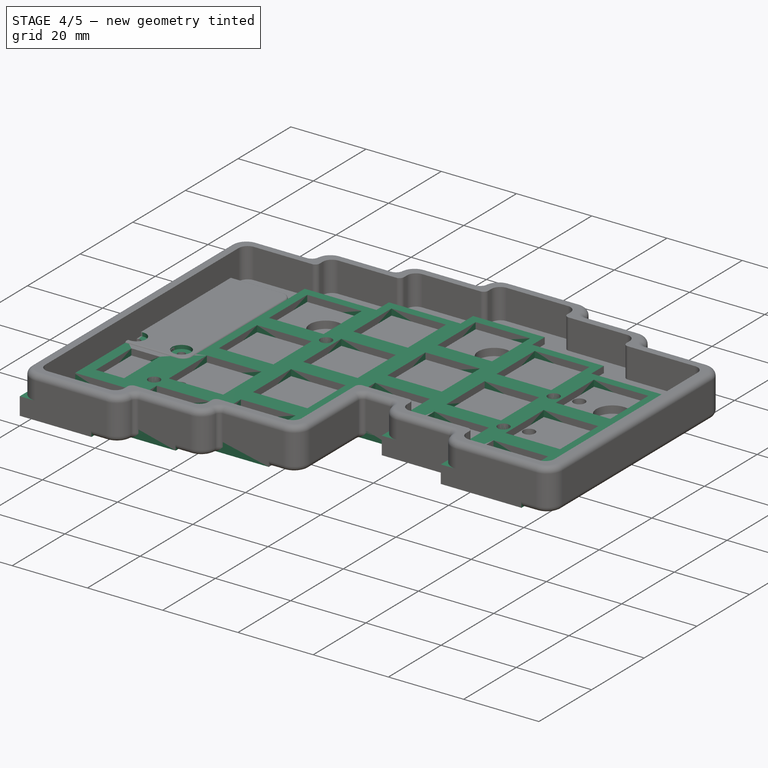
[diagram: stage 4 of 5 — iso view after this stage's code; geometry added in this stage tinted green]
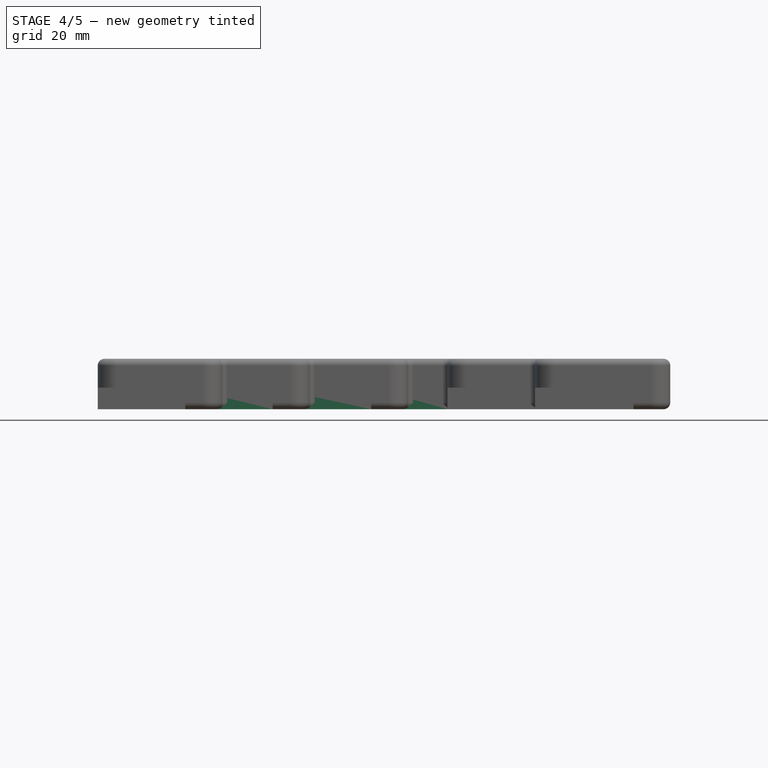
[diagram: stage 4 of 5 — front view after this stage's code; geometry added in this stage tinted green]
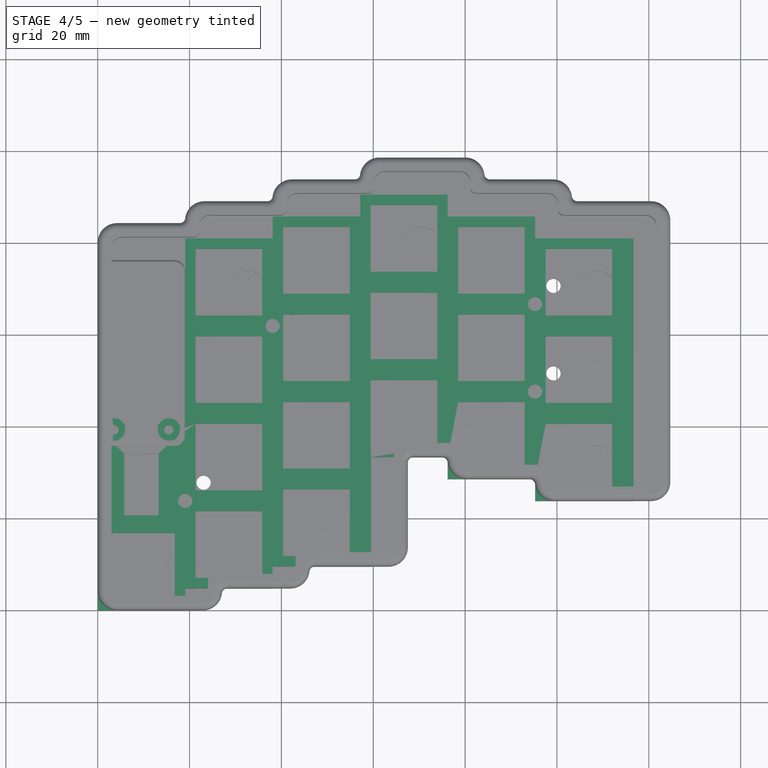
[diagram: stage 4 of 5 — top view after this stage's code; geometry added in this stage tinted green]
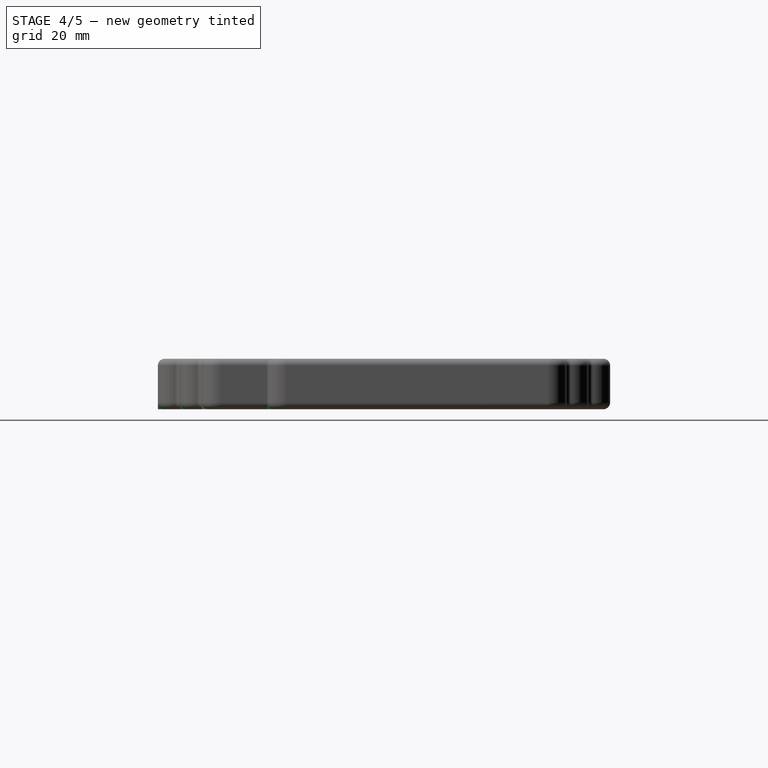
[diagram: stage 4 of 5 — right view after this stage's code; geometry added in this stage tinted green]
FEATURE [Sketcher::SketchObject] Sketch
  FullyConstrained = true
  MapMode = 5
  Support = -> [XY_Plane]
  expr: Constraints[414] = Spreadsheet.switch * 1.125
  expr: Constraints[410] = Spreadsheet.insert
  expr: Constraints[360] = Spreadsheet.switch * 10 / 16
  expr: Constraints[347] = (16 + 7) / 16 * Spreadsheet.switch
  expr: Constraints[186] = Spreadsheet.switch / 4
  expr: Constraints[412] = Spreadsheet.switch
  expr: Constraints[327] = Spreadsheet.switch * 3
  expr: Constraints[338] = Spreadsheet.SS12D10_w
  expr: Constraints[265] = (Spreadsheet.switch - Spreadsheet.switch_hole) / 2
  expr: Constraints[353] = Spreadsheet.switch / 4 / 2
  expr: Constraints[361] = Spreadsheet.switch * 10 / 16
  expr: Constraints[9] = Spreadsheet.switch_hole
  expr: Constraints[339] = Spreadsheet.SS12D10_l
  expr: Constraints[185] = Spreadsheet.switch
  expr: Constraints[329] = Spreadsheet.promicro_l + Spreadsheet.switch / 4 + Spreadsheet.airgap
  expr: Constraints[326] = Spreadsheet.switch * 1.25
  sketch-geometry (148):
    g0: LineSegment StartX=2.275 StartY=16.775 StartZ=0 EndX=2.275 EndY=2.275 EndZ=0
    g1: LineSegment StartX=2.275 StartY=16.775 StartZ=0 EndX=16.775 EndY=16.775 EndZ=0
    g2: LineSegment StartX=16.775 StartY=16.775 StartZ=0 EndX=16.775 EndY=2.275 EndZ=0
    g3: LineSegment StartX=16.775 StartY=2.275 StartZ=0 EndX=2.275 EndY=2.275 EndZ=0
    g4: LineSegment StartX=21.325 StartY=21.5375 StartZ=0 EndX=21.325 EndY=7.0375 EndZ=0
    g5: LineSegment StartX=21.325 StartY=7.0375 StartZ=0 EndX=35.825 EndY=7.0375 EndZ=0
    g6: LineSegment StartX=35.825 StartY=7.0375 StartZ=0 EndX=35.825 EndY=21.5375 EndZ=0
    g7: LineSegment StartX=35.825 StartY=21.5375 StartZ=0 EndX=21.325 EndY=21.5375 EndZ=0
    g8: LineSegment StartX=40.375 StartY=26.3 StartZ=0 EndX=40.375 EndY=11.8 EndZ=0
    g9: LineSegment StartX=40.375 StartY=11.8 StartZ=0 EndX=54.875 EndY=11.8 EndZ=0
    g10: LineSegment StartX=54.875 StartY=11.8 StartZ=0 EndX=54.875 EndY=26.3 EndZ=0
    g11: LineSegment StartX=54.875 StartY=26.3 StartZ=0 EndX=40.375 EndY=26.3 EndZ=0
    g12: LineSegment StartX=21.325 StartY=26.0875 StartZ=0 EndX=35.825 EndY=26.0875 EndZ=0
    g13: LineSegment StartX=35.825 StartY=26.0875 StartZ=0 EndX=35.825 EndY=40.5875 EndZ=0
    g14: LineSegment StartX=35.825 StartY=40.5875 StartZ=0 EndX=21.325 EndY=40.5875 EndZ=0
    g15: LineSegment StartX=21.325 StartY=40.5875 StartZ=0 EndX=21.325 EndY=26.0875 EndZ=0
    g16: LineSegment StartX=21.325 StartY=45.1375 StartZ=0 EndX=35.825 EndY=45.1375 EndZ=0
    g17: LineSegment StartX=35.825 StartY=59.6375 StartZ=0 EndX=35.825 EndY=45.1375 EndZ=0
    g18: LineSegment StartX=21.325 StartY=59.6375 StartZ=0 EndX=35.825 EndY=59.6375 EndZ=0
    g19: LineSegment StartX=21.325 StartY=59.6375 StartZ=0 EndX=21.325 EndY=45.1375 EndZ=0
    g20: LineSegment StartX=21.325 StartY=78.6875 StartZ=0 EndX=21.325 EndY=64.1875 EndZ=0
    g21: LineSegment StartX=21.325 StartY=64.1875 StartZ=0 EndX=35.825 EndY=64.1875 EndZ=0
    g22: LineSegment StartX=35.825 StartY=64.1875 StartZ=0 EndX=35.825 EndY=78.6875 EndZ=0
    g23: LineSegment StartX=35.825 StartY=78.6875 StartZ=0 EndX=21.325 EndY=78.6875 EndZ=0
    g24: LineSegment StartX=40.375 StartY=45.35 StartZ=0 EndX=40.375 EndY=30.85 EndZ=0
    g25: LineSegment StartX=40.375 StartY=30.85 StartZ=0 EndX=54.875 EndY=30.85 EndZ=0
    g26: LineSegment StartX=54.875 StartY=30.85 StartZ=0 EndX=54.875 EndY=45.35 EndZ=0
    g27: LineSegment StartX=40.375 StartY=45.35 StartZ=0 EndX=54.875 EndY=45.35 EndZ=0
    g28: LineSegment StartX=40.375 StartY=64.4 StartZ=0 EndX=40.375 EndY=49.9 EndZ=0
    g29: LineSegment StartX=40.375 StartY=49.9 StartZ=0 EndX=54.875 EndY=49.9 EndZ=0
    g30: LineSegment StartX=54.875 StartY=49.9 StartZ=0 EndX=54.875 EndY=64.4 EndZ=0
    g31: LineSegment StartX=40.375 StartY=64.4 StartZ=0 EndX=54.875 EndY=64.4 EndZ=0
    g32: LineSegment StartX=40.375 StartY=83.45 StartZ=0 EndX=40.375 EndY=68.95 EndZ=0
    g33: LineSegment StartX=40.375 StartY=68.95 StartZ=0 EndX=54.875 EndY=68.95 EndZ=0
    g34: LineSegment StartX=54.875 StartY=68.95 StartZ=0 EndX=54.875 EndY=83.45 EndZ=0
    g35: LineSegment StartX=40.375 StartY=83.45 StartZ=0 EndX=54.875 EndY=83.45 EndZ=0
    g36: LineSegment StartX=59.425 StartY=35.6125 StartZ=0 EndX=73.925 EndY=35.6125 EndZ=0
    g37: LineSegment StartX=73.925 StartY=35.6125 StartZ=0 EndX=73.925 EndY=50.1125 EndZ=0
    g38: LineSegment StartX=59.425 StartY=50.1125 StartZ=0 EndX=73.925 EndY=50.1125 EndZ=0
    g39: LineSegment StartX=59.425 StartY=50.1125 StartZ=0 EndX=59.425 EndY=35.6125 EndZ=0
    g40: LineSegment StartX=59.425 StartY=69.1625 StartZ=0 EndX=59.425 EndY=54.6625 EndZ=0
    g41: LineSegment StartX=59.425 StartY=54.6625 StartZ=0 EndX=73.925 EndY=54.6625 EndZ=0
    g42: LineSegment StartX=73.925 StartY=54.6625 StartZ=0 EndX=73.925 EndY=69.1625 EndZ=0
    g43: LineSegment StartX=73.925 StartY=69.1625 StartZ=0 EndX=59.425 EndY=69.1625 EndZ=0
    g44: LineSegment StartX=59.425 StartY=88.2125 StartZ=0 EndX=59.425 EndY=73.7125 EndZ=0
    g45: LineSegment StartX=59.425 StartY=73.7125 StartZ=0 EndX=73.925 EndY=73.7125 EndZ=0
    g46: LineSegment StartX=73.925 StartY=73.7125 StartZ=0 EndX=73.925 EndY=88.2125 EndZ=0
    g47: LineSegment StartX=73.925 StartY=88.2125 StartZ=0 EndX=59.425 EndY=88.2125 EndZ=0
    g48: LineSegment StartX=78.475 StartY=83.45 StartZ=0 EndX=78.475 EndY=68.95 EndZ=0
    g49: LineSegment StartX=78.475 StartY=68.95 StartZ=0 EndX=92.975 EndY=68.95 EndZ=0
    g50: LineSegment StartX=92.975 StartY=68.95 StartZ=0 EndX=92.975 EndY=83.45 EndZ=0
    g51: LineSegment StartX=78.475 StartY=83.45 StartZ=0 EndX=92.975 EndY=83.45 EndZ=0
    g52: LineSegment StartX=78.475 StartY=64.4 StartZ=0 EndX=92.975 EndY=64.4 EndZ=0
    g53: LineSegment StartX=92.975 StartY=64.4 StartZ=0 EndX=92.975 EndY=49.9 EndZ=0
    g54: LineSegment StartX=92.975 StartY=49.9 StartZ=0 EndX=78.475 EndY=49.9 EndZ=0
    g55: LineSegment StartX=78.475 StartY=49.9 StartZ=0 EndX=78.475 EndY=64.4 EndZ=0
    g56: LineSegment StartX=78.475 StartY=45.35 StartZ=0 EndX=78.475 EndY=30.85 EndZ=0
    g57: LineSegment StartX=78.475 StartY=30.85 StartZ=0 EndX=92.975 EndY=30.85 EndZ=0
    g58: LineSegment StartX=92.975 StartY=30.85 StartZ=0 EndX=92.975 EndY=45.35 EndZ=0
    g59: LineSegment StartX=78.475 StartY=45.35 StartZ=0 EndX=92.975 EndY=45.35 EndZ=0
    g60: LineSegment StartX=97.525 StartY=26.0875 StartZ=0 EndX=97.525 EndY=40.5875 EndZ=0
    g61: LineSegment StartX=97.525 StartY=40.5875 StartZ=0 EndX=112.025 EndY=40.5875 EndZ=0
    g62: LineSegment StartX=112.025 StartY=40.5875 StartZ=0 EndX=112.025 EndY=26.0875 EndZ=0
    g63: LineSegment StartX=112.025 StartY=26.0875 StartZ=0 EndX=97.525 EndY=26.0875 EndZ=0
    g64: LineSegment StartX=97.525 StartY=59.6375 StartZ=0 EndX=97.525 EndY=45.1375 EndZ=0
    g65: LineSegment StartX=97.525 StartY=45.1375 StartZ=0 EndX=112.025 EndY=45.1375 EndZ=0
    g66: LineSegment StartX=112.025 StartY=45.1375 StartZ=0 EndX=112.025 EndY=59.6375 EndZ=0
    g67: LineSegment StartX=97.525 StartY=59.6375 StartZ=0 EndX=112.025 EndY=59.6375 EndZ=0
    g68: LineSegment StartX=97.525 StartY=78.6875 StartZ=0 EndX=97.525 EndY=64.1875 EndZ=0
    g69: LineSegment StartX=97.525 StartY=64.1875 StartZ=0 EndX=112.025 EndY=64.1875 EndZ=0
    g70: LineSegment StartX=112.025 StartY=64.1875 StartZ=0 EndX=112.025 EndY=78.6875 EndZ=0
    g71: LineSegment StartX=97.525 StartY=78.6875 StartZ=0 EndX=112.025 EndY=78.6875 EndZ=0
    g72: LineSegment StartX=2.275 StartY=2.275 StartZ=0 EndX=21.325 EndY=2.275 EndZ=0
    g73: LineSegment StartX=21.325 StartY=2.275 StartZ=0 EndX=21.325 EndY=7.0375 EndZ=0
    g74: LineSegment StartX=35.825 StartY=7.0375 StartZ=0 EndX=35.825 EndY=26.0875 EndZ=0
    g75: LineSegment StartX=35.825 StartY=26.0875 StartZ=0 EndX=35.825 EndY=45.1375 EndZ=0
    g76: LineSegment StartX=35.825 StartY=45.1375 StartZ=0 EndX=35.825 EndY=64.1875 EndZ=0
    g77: LineSegment StartX=54.875 StartY=11.8 StartZ=0 EndX=54.875 EndY=30.85 EndZ=0
    g78: LineSegment StartX=54.875 StartY=30.85 StartZ=0 EndX=54.875 EndY=49.9 EndZ=0
    g79: LineSegment StartX=54.875 StartY=49.9 StartZ=0 EndX=54.875 EndY=68.95 EndZ=0
    g80: LineSegment StartX=73.925 StartY=35.6125 StartZ=0 EndX=73.925 EndY=54.6625 EndZ=0
    g81: LineSegment StartX=73.925 StartY=54.6625 StartZ=0 EndX=73.925 EndY=73.7125 EndZ=0
    g82: LineSegment StartX=92.975 StartY=30.85 StartZ=0 EndX=92.975 EndY=49.9 EndZ=0
    g83: LineSegment StartX=92.975 StartY=49.9 StartZ=0 EndX=92.975 EndY=68.95 EndZ=0
    g84: LineSegment StartX=112.025 StartY=26.0875 StartZ=0 EndX=112.025 EndY=45.1375 EndZ=0
    g85: LineSegment StartX=112.025 StartY=45.1375 StartZ=0 EndX=112.025 EndY=64.1875 EndZ=0
    g86: LineSegment StartX=21.325 StartY=7.0375 StartZ=0 EndX=40.375 EndY=7.0375 EndZ=0
    g87: LineSegment StartX=40.375 StartY=7.0375 StartZ=0 EndX=40.375 EndY=11.8 EndZ=0
    g88: LineSegment StartX=59.425 StartY=30.85 StartZ=0 EndX=59.425 EndY=35.6125 EndZ=0
    g89: LineSegment StartX=59.425 StartY=30.85 StartZ=0 EndX=78.475 EndY=30.85 EndZ=0
    g90: LineSegment StartX=78.475 StartY=30.85 StartZ=0 EndX=78.475 EndY=26.0875 EndZ=0
    g91: LineSegment StartX=78.475 StartY=26.0875 StartZ=0 EndX=97.525 EndY=26.0875 EndZ=0
    g92: LineSegment StartX=40.375 StartY=30.85 StartZ=0 EndX=59.425 EndY=30.85 EndZ=0
    g93: LineSegment StartX=0 StartY=0 StartZ=0 EndX=2.275 EndY=0 EndZ=0
    g94: LineSegment StartX=2.275 StartY=2.275 StartZ=0 EndX=2.275 EndY=0 EndZ=0
    g95: LineSegment StartX=0 StartY=0 StartZ=0 EndX=19.05 EndY=0 EndZ=0
    g96: LineSegment StartX=19.05 StartY=0 StartZ=0 EndX=19.05 EndY=4.7625 EndZ=0
    g97: LineSegment StartX=19.05 StartY=4.7625 StartZ=0 EndX=38.1 EndY=4.7625 EndZ=0
    g98: LineSegment StartX=38.1 StartY=4.7625 StartZ=0 EndX=38.1 EndY=9.525 EndZ=0
    g99: LineSegment StartX=38.1 StartY=9.525 StartZ=0 EndX=59.5312 EndY=9.525 EndZ=0
    g100: LineSegment StartX=59.5312 StartY=9.525 StartZ=0 EndX=59.5312 EndY=33.3375 EndZ=0
    g101: LineSegment StartX=59.5312 StartY=33.3375 StartZ=0 EndX=76.2 EndY=33.3375 EndZ=0
    g102: LineSegment StartX=76.2 StartY=33.3375 StartZ=0 EndX=76.2 EndY=28.575 EndZ=0
    g103: LineSegment StartX=76.2 StartY=28.575 StartZ=0 EndX=95.25 EndY=28.575 EndZ=0
    g104: LineSegment StartX=95.25 StartY=28.575 StartZ=0 EndX=95.25 EndY=23.8125 EndZ=0
    g105: LineSegment StartX=95.25 StartY=23.8125 StartZ=0 EndX=116.681 EndY=23.8125 EndZ=0
    g106: LineSegment StartX=116.681 StartY=23.8125 StartZ=0 EndX=116.681 EndY=80.9625 EndZ=0
    g107: LineSegment StartX=116.681 StartY=80.9625 StartZ=0 EndX=95.25 EndY=80.9625 EndZ=0
    g108: LineSegment StartX=95.25 StartY=80.9625 StartZ=0 EndX=95.25 EndY=85.725 EndZ=0
    g109: LineSegment StartX=95.25 StartY=85.725 StartZ=0 EndX=76.2 EndY=85.725 EndZ=0
    g110: LineSegment StartX=76.2 StartY=85.725 StartZ=0 EndX=76.2 EndY=90.4875 EndZ=0
    g111: LineSegment StartX=76.2 StartY=90.4875 StartZ=0 EndX=57.15 EndY=90.4875 EndZ=0
    g112: LineSegment StartX=57.15 StartY=90.4875 StartZ=0 EndX=57.15 EndY=85.725 EndZ=0
    g113: LineSegment StartX=57.15 StartY=85.725 StartZ=0 EndX=38.1 EndY=85.725 EndZ=0
    g114: LineSegment StartX=38.1 StartY=85.725 StartZ=0 EndX=38.1 EndY=80.9625 EndZ=0
    g115: LineSegment StartX=38.1 StartY=80.9625 StartZ=0 EndX=19.05 EndY=80.9625 EndZ=0
    g116: LineSegment StartX=19.05 StartY=80.9625 StartZ=0 EndX=19.05 EndY=42.2 EndZ=0
    g117: LineSegment StartX=0 StartY=0 StartZ=0 EndX=0 EndY=42.2 EndZ=0
    g118: LineSegment StartX=5.775 StartY=34.1344 StartZ=0 EndX=5.775 EndY=20.6344 EndZ=0
    g119: LineSegment StartX=5.775 StartY=20.6344 StartZ=0 EndX=13.275 EndY=20.6344 EndZ=0
    g120: LineSegment StartX=13.275 StartY=20.6344 StartZ=0 EndX=13.275 EndY=34.1344 EndZ=0
    g121: LineSegment StartX=13.275 StartY=34.1344 StartZ=0 EndX=5.775 EndY=34.1344 EndZ=0
    g122: LineSegment StartX=13.275 StartY=34.1344 StartZ=0 EndX=9.525 EndY=27.3844 EndZ=0
    g123: LineSegment StartX=9.525 StartY=27.3844 StartZ=0 EndX=13.275 EndY=20.6344 EndZ=0
    g124: LineSegment StartX=9.525 StartY=27.3844 StartZ=0 EndX=5.775 EndY=20.6344 EndZ=0
    g125: LineSegment StartX=2.275 StartY=16.775 StartZ=0 EndX=9.525 EndY=27.3844 EndZ=0
    g126: LineSegment StartX=9.525 StartY=27.3844 StartZ=0 EndX=16.775 EndY=16.775 EndZ=0
    g127: ArcOfCircle CenterX=3.57187 CenterY=39.2906 CenterZ=0 NormalX=0 NormalY=0 NormalZ=1 AngleXU=0 Radius=2.38125 StartAngle=3.14159 EndAngle=6.28319
    g128: ArcOfCircle CenterX=15.4781 CenterY=39.2906 CenterZ=0 NormalX=0 NormalY=0 NormalZ=1 AngleXU=0 Radius=2.38125 StartAngle=3.14159 EndAngle=6.28319
    g129: LineSegment StartX=17.8594 StartY=39.2906 StartZ=0 EndX=17.8594 EndY=42.2 EndZ=0
    g130: LineSegment StartX=17.8594 StartY=42.2 StartZ=0 EndX=19.05 EndY=42.2 EndZ=0
    g131: LineSegment StartX=1.19062 StartY=39.2906 StartZ=0 EndX=1.19062 EndY=42.2 EndZ=0
    g132: LineSegment StartX=0 StartY=42.2 StartZ=0 EndX=1.19062 EndY=42.2 EndZ=0
    g133: LineSegment StartX=5.95312 StartY=39.2906 StartZ=0 EndX=5.95312 EndY=42.2 EndZ=0
    g134: LineSegment StartX=13.0969 StartY=39.2906 StartZ=0 EndX=13.0969 EndY=42.2 EndZ=0
    g135: LineSegment StartX=5.95312 StartY=42.2 StartZ=0 EndX=13.0969 EndY=42.2 EndZ=0
    g136: Circle CenterX=19.05 CenterY=23.8125 CenterZ=0 NormalX=0 NormalY=0 NormalZ=1 AngleXU=0 Radius=1.55
    g137: Circle CenterX=38.1 CenterY=61.9125 CenterZ=0 NormalX=0 NormalY=0 NormalZ=1 AngleXU=0 Radius=1.55
    g138: Circle CenterX=95.25 CenterY=66.675 CenterZ=0 NormalX=0 NormalY=0 NormalZ=1 AngleXU=0 Radius=1.55
    g139: Circle CenterX=95.25 CenterY=47.625 CenterZ=0 NormalX=0 NormalY=0 NormalZ=1 AngleXU=0 Radius=1.55
    g140: LineSegment StartX=35.825 StartY=64.1875 StartZ=0 EndX=38.1 EndY=61.9125 EndZ=0
    g141: LineSegment StartX=35.825 StartY=59.6375 StartZ=0 EndX=38.1 EndY=61.9125 EndZ=0
    g142: LineSegment StartX=19.05 StartY=23.8125 StartZ=0 EndX=21.325 EndY=26.0875 EndZ=0
    g143: LineSegment StartX=19.05 StartY=23.8125 StartZ=0 EndX=21.325 EndY=21.5375 EndZ=0
    g144: LineSegment StartX=92.975 StartY=49.9 StartZ=0 EndX=95.25 EndY=47.625 EndZ=0
    g145: LineSegment StartX=92.975 StartY=45.35 StartZ=0 EndX=95.25 EndY=47.625 EndZ=0
    g146: LineSegment StartX=92.975 StartY=68.95 StartZ=0 EndX=95.25 EndY=66.675 EndZ=0
    g147: LineSegment StartX=92.975 StartY=64.4 StartZ=0 EndX=95.25 EndY=66.675 EndZ=0
  constraints (415):
    c: Vertical(g0)
    c: Coincident(g1,g0)
    c: Horizontal(g1)
    c: Coincident(g2,g1)
    c: Vertical(g2)
    c: Coincident(g3,g2)
    c: Coincident(g3,g0)
    c: Horizontal(g3)
    c: Equal(g1,g2)
    c: DistanceY(g2,g2) = 14.5
    c: Vertical(g4)
    c: Horizontal(g5)
    c: Coincident(g6,g5)
    c: Vertical(g6)
    c: Coincident(g7,g6)
    c: Coincident(g7,g4)
    c: Horizontal(g7)
    c: Vertical(g8)
    c: Coincident(g9,g8)
    c: Horizontal(g9)
    c: Coincident(g10,g9)
    c: Vertical(g10)
    c: Coincident(g11,g10)
    c: Coincident(g11,g8)
    c: Horizontal(g11)
    c: Horizontal(g12)
    c: Coincident(g13,g12)
    c: Vertical(g13)
    c: Coincident(g14,g13)
    c: Horizontal(g14)
    c: Coincident(g15,g14)
    c: Coincident(g15,g12)
    c: Vertical(g15)
    c: Horizontal(g16)
    c: Coincident(g17,g16)
    c: Coincident(g18,g17)
    c: Coincident(g19,g18)
    c: Coincident(g19,g16)
    c: Vertical(g19)
    c: Vertical(g17)
    c: Horizontal(g18)
    c: Vertical(g20)
    c: Coincident(g21,g20)
    c: Horizontal(g21)
    c: Coincident(g22,g21)
    c: Vertical(g22)
    c: Coincident(g23,g22)
    c: Coincident(g23,g20)
    c: Horizontal(g23)
    c: Vertical(g24)
    c: Coincident(g25,g24)
    c: Horizontal(g25)
    c: Coincident(g26,g25)
    c: Vertical(g26)
    c: Coincident(g27,g24)
    c: Coincident(g27,g26)
    c: Horizontal(g27)
    c: Vertical(g28)
    c: Coincident(g29,g28)
    c: Horizontal(g29)
    c: Coincident(g30,g29)
    c: Vertical(g30)
    c: Coincident(g31,g28)
    c: Coincident(g31,g30)
    c: Horizontal(g31)
    c: Vertical(g32)
    c: Coincident(g33,g32)
    c: Horizontal(g33)
    c: Coincident(g34,g33)
    c: Vertical(g34)
    c: Coincident(g35,g32)
    c: Coincident(g35,g34)
    c: Horizontal(g35)
    c: Horizontal(g36)
    c: Vertical(g37)
    c: Coincident(g38,g37)
    c: Horizontal(g38)
    c: Coincident(g39,g38)
    c: Coincident(g39,g36)
    c: Coincident(g36,g37)
    c: Vertical(g39)
    c: Vertical(g40)
    c: Coincident(g41,g40)
    c: Horizontal(g41)
    c: Coincident(g42,g41)
    c: Vertical(g42)
    c: Coincident(g43,g42)
    c: Coincident(g43,g40)
    c: Horizontal(g43)
    c: Vertical(g44)
    c: Coincident(g45,g44)
    c: Horizontal(g45)
    c: Coincident(g46,g45)
    c: Coincident(g47,g46)
    c: Coincident(g47,g44)
    c: Horizontal(g47)
    c: Vertical(g46)
    c: Vertical(g48)
    c: Coincident(g49,g48)
    c: Horizontal(g49)
    c: Coincident(g50,g49)
    c: Vertical(g50)
    c: Coincident(g51,g48)
    c: Coincident(g51,g50)
    c: Horizontal(g52)
    c: Coincident(g53,g52)
    c: Coincident(g54,g53)
    c: Coincident(g55,g54)
    c: Coincident(g55,g52)
    c: Coincident(g57,g56)
    c: Coincident(g58,g57)
    c: Coincident(g59,g56)
    c: Coincident(g59,g58)
    c: Horizontal(g59)
    c: Coincident(g61,g60)
    c: Coincident(g62,g61)
    c: Vertical(g62)
    c: Coincident(g63,g62)
    c: Coincident(g63,g60)
    c: Coincident(g65,g64)
    c: Horizontal(g65)
    c: Coincident(g66,g65)
    c: Coincident(g67,g64)
    c: Coincident(g67,g66)
    c: Vertical(g68)
    c: Coincident(g69,g68)
    c: Coincident(g70,g69)
    c: Vertical(g70)
    c: Coincident(g71,g68)
    c: Coincident(g71,g70)
    c: Horizontal(g71)
    c: Horizontal(g69)
    c: Horizontal(g67)
    c: Horizontal(g61)
    c: Horizontal(g63)
    c: Horizontal(g57)
    c: Horizontal(g54)
    c: Horizontal(g51)
    c: Vertical(g58)
    c: Vertical(g60)
    c: Vertical(g64)
    c: Vertical(g66)
    c: Vertical(g56)
    c: Vertical(g53)
    c: Vertical(g55)
    c: Equal(g1,g7)
    c: Equal(g7,g6)
    c: Equal(g6,g11)
    c: Equal(g11,g10)
    c: Equal(g10,g27)
    c: Equal(g27,g26)
    c: Equal(g26,g14)
    c: Equal(g14,g13)
    c: Equal(g13,g18)
    c: Equal(g18,g17)
    c: Equal(g17,g23)
    c: Equal(g23,g22)
    c: Equal(g22,g35)
    c: Equal(g35,g34)
    c: Equal(g34,g31)
    c: Equal(g31,g30)
    c: Equal(g30,g47)
    c: Equal(g47,g46)
    c: Equal(g46,g51)
    c: Equal(g51,g50)
    c: Equal(g50,g43)
    c: Equal(g43,g42)
    c: Equal(g42,g38)
    c: Equal(g38,g37)
    c: Equal(g37,g52)
    c: Equal(g52,g53)
    c: Equal(g53,g59)
    c: Equal(g59,g58)
    c: Equal(g58,g61)
    c: Equal(g61,g62)
    c: Equal(g62,g67)
    c: Equal(g67,g66)
    c: Equal(g66,g71)
    c: Equal(g71,g70)
    c: Coincident(g4,g5)
    c: Coincident(g72,g0)
    c: Horizontal(g72)
    c: Coincident(g73,g72)
    c: Coincident(g73,g4)
    c: Vertical(g73)
    c: DistanceX(g72,g72) = 19.05
    c: DistanceY(g73,g73) = 4.7625
    c: Coincident(g74,g5)
    c: Coincident(g74,g12)
    c: Vertical(g74)
    c: Coincident(g75,g12)
    c: Coincident(g75,g16)
    c: Vertical(g75)
    c: Coincident(g76,g16)
    c: Coincident(g76,g21)
    c: Vertical(g76)
    c: Equal(g76,g75)
    c: Equal(g75,g74)
    c: Equal(g74,g72)
    c: Coincident(g77,g9)
    c: Coincident(g77,g25)
    c: Vertical(g77)
    c: Coincident(g78,g25)
    c: Coincident(g78,g29)
    c: Coincident(g79,g29)
    c: Coincident(g79,g33)
    c: Vertical(g78)
    c: Vertical(g79)
    c: Equal(g77,g78)
    c: Equal(g78,g79)
    c: Equal(g79,g72)
    c: Coincident(g80,g36)
    c: Coincident(g80,g41)
    c: Vertical(g80)
    c: Coincident(g81,g41)
    c: Coincident(g81,g45)
    c: Vertical(g81)
    c: Coincident(g82,g57)
    c: Coincident(g82,g53)
    c: Vertical(g82)
    c: Coincident(g83,g53)
    c: Coincident(g83,g49)
    c: Vertical(g83)
    c: Coincident(g84,g62)
    c: Coincident(g84,g65)
    c: Vertical(g84)
    c: Coincident(g85,g65)
    c: Coincident(g85,g69)
    c: Vertical(g85)
    c: Equal(g83,g82)
    c: Equal(g82,g84)
    c: Equal(g84,g85)
    c: Equal(g85,g81)
    c: Equal(g81,g80)
    c: Equal(g80,g72)
    c: Coincident(g86,g4)
    c: Horizontal(g86)
    c: Coincident(g87,g86)
    c: Coincident(g87,g8)
    c: Coincident(g88,g36)
    c: Coincident(g89,g56)
    c: Vertical(g88)
    c: Vertical(g87)
    c: Coincident(g90,g56)
    c: Vertical(g90)
    c: Coincident(g91,g90)
    c: Coincident(g91,g60)
    c: Horizontal(g91)
    c: Equal(g91,g89)
    c: Equal(g86,g72)
    c: Horizontal(g25,g57)
    c: Horizontal(g62,g12)
    c: Coincident(g89,g88)
    c: Equal(g87,g88)
    c: Equal(g90,g73)
    c: Horizontal(g89)
    c: Coincident(g92,g24)
    c: Coincident(g92,g88)
    c: Equal(g92,g89)
    c: Equal(g91,g86)
    c: Coincident(g94,g0)
    c: Coincident(g94,g93)
    c: Equal(g93,g94)
    c: Horizontal(g93)
    c: Vertical(g94)
    c: DistanceY(g94,g94) = 2.275
    c: Coincident(g95,g93)
    c: Horizontal(g95)
    c: Coincident(g96,g95)
    c: Vertical(g96)
    c: Coincident(g97,g96)
    c: Horizontal(g97)
    c: Coincident(g98,g97)
    c: Vertical(g98)
    c: Coincident(g99,g98)
    c: Horizontal(g99)
    c: Coincident(g100,g99)
    c: Vertical(g100)
    c: Coincident(g101,g100)
    c: Horizontal(g101)
    c: Coincident(g102,g101)
    c: Coincident(g103,g102)
    c: Horizontal(g103)
    c: Coincident(g104,g103)
    c: Vertical(g104)
    c: Coincident(g105,g104)
    c: Horizontal(g105)
    c: Coincident(g106,g105)
    c: Vertical(g106)
    c: Coincident(g107,g106)
    c: Horizontal(g107)
    c: Coincident(g108,g107)
    c: Vertical(g108)
    c: Coincident(g109,g108)
    c: Horizontal(g109)
    c: Coincident(g110,g109)
    c: Vertical(g110)
    c: Coincident(g111,g110)
    c: Horizontal(g111)
    c: Coincident(g112,g111)
    c: Vertical(g112)
    c: Coincident(g113,g112)
    c: Horizontal(g113)
    c: Coincident(g114,g113)
    c: Vertical(g114)
    c: Coincident(g115,g114)
    c: Horizontal(g115)
    c: Coincident(g116,g115)
    c: Vertical(g116)
    c: Coincident(g117,g95)
    c: Vertical(g117)
    c: Equal(g72,g95)
    c: Equal(g95,g97)
    c: Equal(g103,g109)
    c: Equal(g109,g111)
    c: Equal(g111,g113)
    c: Equal(g113,g115)
    c: Equal(g114,g112)
    c: Equal(g112,g110)
    c: Equal(g110,g108)
    c: Equal(g108,g104)
    c: Equal(g104,g102)
    c: Equal(g102,g98)
    c: Equal(g98,g96)
    c: Equal(g96,g73)
    c: Vertical(g102)
    c: DistanceY(g100,g100) = 23.8125
    c: DistanceY(g106,g106) = 57.15
    c: Coincident(g95,g-1)
    c: DistanceY(g116,g116) = 38.7625
    c: Vertical(g118)
    c: Coincident(g119,g118)
    c: Horizontal(g119)
    c: Coincident(g120,g119)
    c: Vertical(g120)
    c: Coincident(g121,g120)
    c: Horizontal(g121)
    c: Coincident(g121,g118)
    c: DistanceX(g119,g119) = 7.5
    c: DistanceY(g120,g120) = 13.5
    c: Coincident(g122,g120)
    c: Coincident(g123,g122)
    c: Coincident(g123,g119)
    c: Coincident(g124,g122)
    c: Coincident(g124,g118)
    c: Equal(g124,g123)
    c: Equal(g123,g122)
    c: DistanceY(g95,g122) = 27.3844
    c: Coincident(g125,g0)
    c: Coincident(g125,g122)
    c: Coincident(g126,g122)
    c: Coincident(g126,g1)
    c: Equal(g125,g126)
    c: Radius(g128) = 2.38125
    c: Equal(g127,g128)
    c: Horizontal(g127,g127)
    c: Horizontal(g127,g128)
    c: Horizontal(g128,g128)
    c: Horizontal(g128,g127)
    c: Horizontal(g127,g128)
    c: DistanceX(g127,g128) = 11.9062
    c: DistanceY(g122,g127) = 11.9062
    c: Equal(g107,g105)
    c: Coincident(g129,g128)
    c: Vertical(g129)
    c: Coincident(g130,g129)
    c: Coincident(g130,g116)
    c: Horizontal(g130)
    c: Coincident(g131,g127)
    c: Vertical(g131)
    c: Coincident(g132,g117)
    c: Coincident(g132,g131)
    c: Horizontal(g132)
    c: Coincident(g133,g127)
    c: Vertical(g133)
    c: Coincident(g134,g128)
    c: Vertical(g134)
    c: Coincident(g135,g133)
    c: Coincident(g135,g134)
    c: Horizontal(g135)
    c: Horizontal(g131,g133)
    c: Horizontal(g133,g129)
    c: Equal(g132,g130)
    c: Equal(g136,g137)
    c: Equal(g137,g138)
    c: Equal(g138,g139)
    c: Coincident(g140,g21)
    c: Coincident(g140,g137)
    c: Coincident(g141,g17)
    c: Coincident(g141,g137)
    c: Coincident(g142,g136)
    c: Coincident(g142,g12)
    c: Coincident(g143,g136)
    c: Coincident(g143,g4)
    c: Coincident(g144,g53)
    c: Coincident(g144,g139)
    c: Coincident(g145,g58)
    c: Coincident(g145,g139)
    c: Coincident(g146,g49)
    c: Coincident(g146,g138)
    c: Coincident(g147,g52)
    c: Coincident(g147,g138)
    c: Equal(g146,g147)
    c: Equal(g147,g144)
    c: Equal(g144,g145)
    c: Equal(g145,g143)
    c: Equal(g143,g142)
    c: Equal(g142,g140)
    c: Equal(g140,g141)
    c: Vertical(g96,g136)
    c: Diameter(g136) = 3.1
    c: Equal(g105,g99)
    c: DistanceX(g115,g115) = 19.05
    c: Vertical(g116,g96)
    c: DistanceX(g105,g105) = 21.4313
FEATURE [Spreadsheet::Sheet] Spreadsheet
  cells = A1(switch_hole)=14.5; C1(border)=3; A2(switch)=19.05; C2(airgap)=1; E2(magnet_d)=8.5; A3(plate)=4.7; B3=4.7?; C3(case_h)=11; E3(magnet_depth)=3.5; A4(promicro_l)=33; C4(case_bottom)=3; A5(SS12D10_w)=7.5; A6(SS12D10_l)=13.5; A7(insert)=3.1; C7(diode_w)==19.05 / 16 * 2; C8(diode_l)==19.05 / 2; A9(feet)=6; C10(magnet)=9
FEATURE [PartDesign::Pad] Pad
  Direction = (1,1,1)
  Length = 4.7
  Length2 = 100
  Profile = -> Sketch
  Type = 0
  expr: Length = Spreadsheet.plate
FEATURE [Sketcher::SketchObject] Sketch009
  FullyConstrained = true
  MapMode = 5
  Placement = pos=(0,0,5) rot=(0,0,1;0rad)
  Support = -> [Pocket006]
  expr: Constraints[2] = 33 / 16 * Spreadsheet.switch
  expr: Constraints[7] = 3 / 16 * Spreadsheet.switch
  expr: Constraints[8] = Spreadsheet.switch / 16 * 10
  sketch-geometry (5):
    g0: LineSegment StartX=0 StartY=0 StartZ=0 EndX=0 EndY=39.2906 EndZ=0
    g1: LineSegment StartX=0 StartY=39.2906 StartZ=0 EndX=3.57188 EndY=39.2906 EndZ=0
    g2: LineSegment StartX=3.57188 StartY=39.2906 StartZ=0 EndX=15.4781 EndY=39.2906 EndZ=0
    g3: Circle CenterX=3.57188 CenterY=39.2906 CenterZ=0 NormalX=0 NormalY=0 NormalZ=1 AngleXU=0 Radius=2.5
    g4: Circle CenterX=15.4781 CenterY=39.2906 CenterZ=0 NormalX=0 NormalY=0 NormalZ=1 AngleXU=0 Radius=2.5
  constraints (13):
    c: Coincident(g0,g-1)
    c: PointOnObject(g0,g-2)
    c: DistanceY(g0,g0) = 39.2906
    c: Coincident(g1,g0)
    c: Horizontal(g1)
    c: Coincident(g2,g1)
    c: Horizontal(g2)
    c: DistanceX(g1,g1) = 3.57188
    c: DistanceX(g2,g2) = 11.9062
    c: Coincident(g3,g1)
    c: Coincident(g4,g2)
    c: Diameter(g3) = 5
    c: Equal(g3,g4)
FEATURE [PartDesign::Pocket] Pocket007
  BaseFeature = -> Pocket006
  Length = 1
  Length2 = 100
  Profile = -> Sketch009
  Type = 0
FEATURE [PartDesign::Fillet] Fillet006
  Base = -> Pocket007 [Edge16,Edge22,Edge6,Edge4,Edge2,Edge12]
  BaseFeature = -> Pocket007
  Radius = 2.38125
  SupportTransform = false
  expr: Radius = Spreadsheet.switch / 16 * 2
FEATURE [PartDesign::Fillet] Fillet007
  Base = -> Fillet006 [Edge29,Edge8,Edge26]
  BaseFeature = -> Fillet006
  Radius = 0.5
  SupportTransform = false
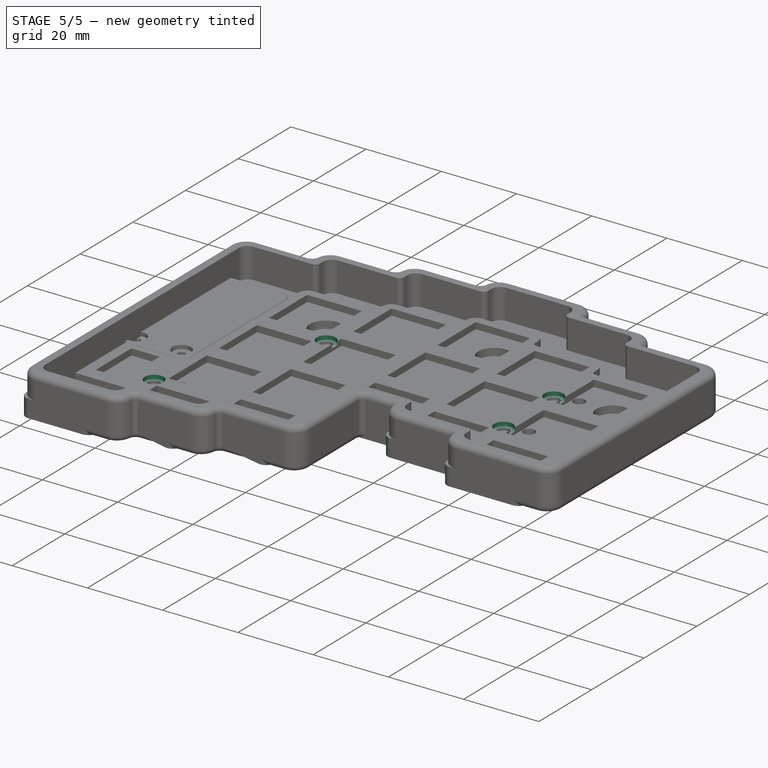
[diagram: stage 5 of 5 — iso view after this stage's code; geometry added in this stage tinted green]
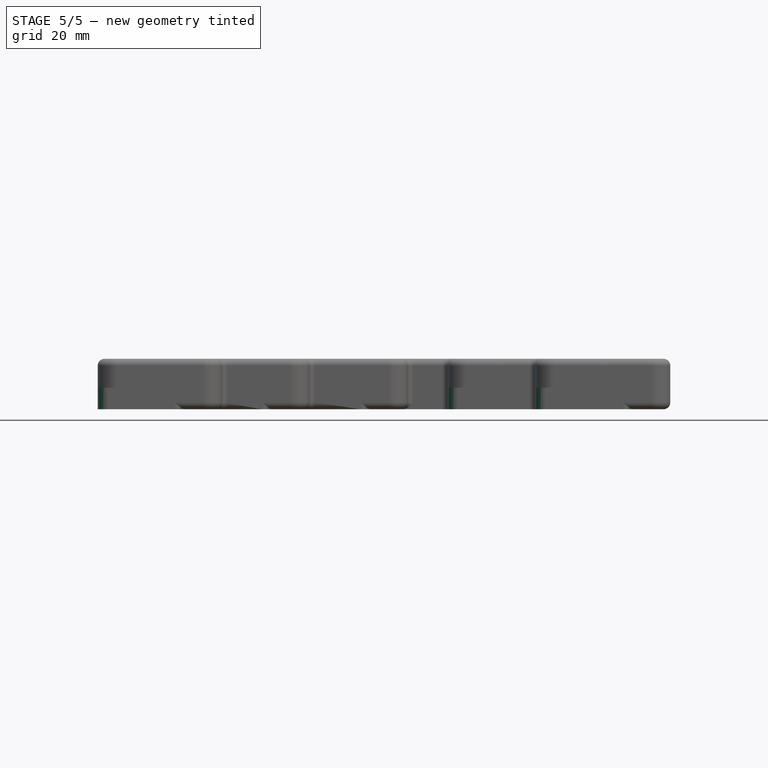
[diagram: stage 5 of 5 — front view after this stage's code; geometry added in this stage tinted green]
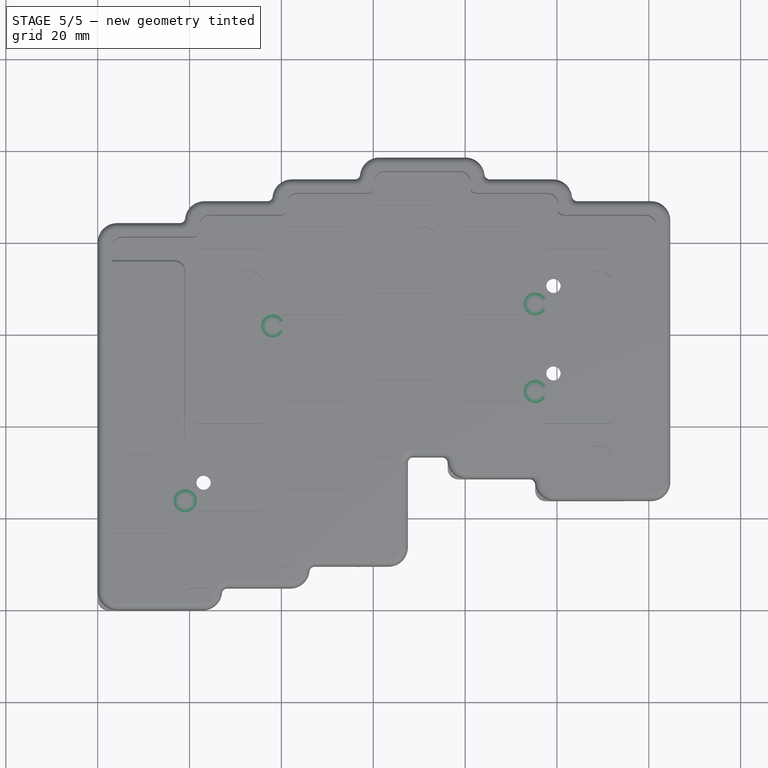
[diagram: stage 5 of 5 — top view after this stage's code; geometry added in this stage tinted green]
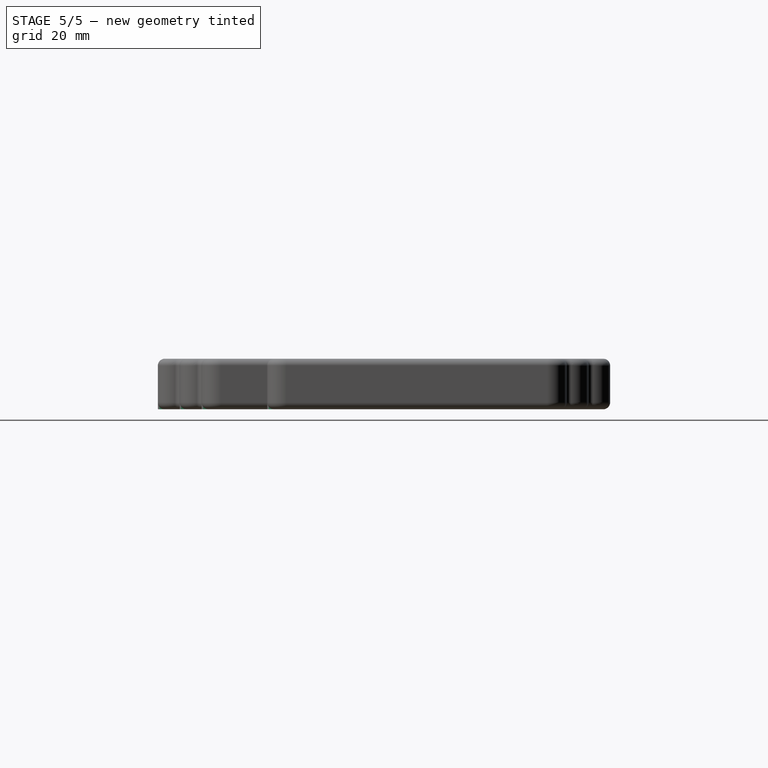
[diagram: stage 5 of 5 — right view after this stage's code; geometry added in this stage tinted green]
FEATURE [Sketcher::SketchObject] Sketch004
  FullyConstrained = true
  MapMode = 5
  Placement = pos=(0,0,4.7) rot=(0,0,1;0rad)
  Support = -> [Pad]
  expr: Constraints[21] = Spreadsheet.switch
  expr: Constraints[20] = Spreadsheet.switch * 1.25
  expr: Constraints[19] = Spreadsheet.switch / 4
  sketch-geometry (14):
    g0: LineSegment StartX=0 StartY=0 StartZ=0 EndX=19.05 EndY=0 EndZ=0
    g1: LineSegment StartX=19.05 StartY=0 StartZ=0 EndX=19.05 EndY=23.8125 EndZ=0
    g2: LineSegment StartX=19.05 StartY=23.8125 StartZ=0 EndX=38.1 EndY=23.8125 EndZ=0
    g3: LineSegment StartX=38.1 StartY=23.8125 StartZ=0 EndX=38.1 EndY=42.8625 EndZ=0
    g4: LineSegment StartX=38.1 StartY=42.8625 StartZ=0 EndX=38.1 EndY=61.9125 EndZ=0
    g5: LineSegment StartX=38.1 StartY=61.9125 StartZ=0 EndX=57.15 EndY=61.9125 EndZ=0
    g6: LineSegment StartX=57.15 StartY=61.9125 StartZ=0 EndX=76.2 EndY=61.9125 EndZ=0
    g7: LineSegment StartX=76.2 StartY=61.9125 StartZ=0 EndX=95.25 EndY=61.9125 EndZ=0
    g8: LineSegment StartX=95.25 StartY=61.9125 StartZ=0 EndX=95.25 EndY=66.675 EndZ=0
    g9: LineSegment StartX=95.25 StartY=66.675 StartZ=0 EndX=95.25 EndY=47.625 EndZ=0
    g10: Circle CenterX=19.05 CenterY=23.8125 CenterZ=0 NormalX=0 NormalY=0 NormalZ=1 AngleXU=0 Radius=2.5
    g11: Circle CenterX=38.1 CenterY=61.9125 CenterZ=0 NormalX=0 NormalY=0 NormalZ=1 AngleXU=0 Radius=2.5
    g12: Circle CenterX=95.25 CenterY=66.675 CenterZ=0 NormalX=0 NormalY=0 NormalZ=1 AngleXU=0 Radius=2.5
    g13: Circle CenterX=95.25 CenterY=47.625 CenterZ=0 NormalX=0 NormalY=0 NormalZ=1 AngleXU=0 Radius=2.5
  constraints (38):
    c: Coincident(g0,g-1)
    c: Coincident(g1,g0)
    c: Coincident(g2,g1)
    c: Horizontal(g2)
    c: Coincident(g3,g2)
    c: Vertical(g3)
    c: Coincident(g4,g3)
    c: Vertical(g4)
    c: Coincident(g5,g4)
    c: Horizontal(g5)
    c: Coincident(g6,g5)
    c: Horizontal(g6)
    c: Coincident(g7,g6)
    c: Horizontal(g7)
    c: Coincident(g8,g7)
    c: Vertical(g8)
    c: Coincident(g9,g8)
    c: Vertical(g9)
    c: Horizontal(g0)
    c: DistanceY(g8,g8) = 4.7625
    c: DistanceY(g1,g1) = 23.8125
    c: DistanceX(g2,g2) = 19.05
    c: Vertical(g1)
    c: Equal(g7,g9)
    c: Equal(g9,g6)
    c: Equal(g6,g5)
    c: Equal(g5,g4)
    c: Equal(g4,g3)
    c: Equal(g3,g2)
    c: Equal(g2,g0)
    c: Coincident(g10,g1)
    c: Coincident(g11,g4)
    c: Coincident(g12,g8)
    c: Coincident(g13,g9)
    c: Diameter(g11) = 5
    c: Equal(g11,g10)
    c: Equal(g10,g13)
    c: Equal(g13,g12)
FEATURE [PartDesign::Pocket] Pocket003
  BaseFeature = -> Pad
  Length = 1
  Length2 = 100
  Profile = -> Sketch004
  Type = 0
FEATURE [PartDesign::Fillet] Fillet
  Base = -> Pocket003 [Edge232,Edge235,Edge237,Edge246,Edge238,Edge240,Edge251,Edge249,Edge244]
  BaseFeature = -> Pocket003
  Radius = 1.19063
  SupportTransform = false
  expr: Radius = Spreadsheet.switch / 16
FEATURE [PartDesign::Fillet] Fillet001
  Base = -> Fillet [Edge127,Edge123,Edge129,Edge141,Edge161,Edge171,Edge193,Edge181,Edge199,Edge195,Edge183,Edge173,Edge177]
  BaseFeature = -> Fillet
  Radius = 2.38125
  SupportTransform = false
  expr: Radius = Spreadsheet.switch / 8
FEATURE [Sketcher::SketchObject] Sketch006
  FullyConstrained = true
  MapMode = 5
  Placement = pos=(0,0,0) rot=(1,0,0;3.14159rad)
  Support = -> [Fillet001]
  expr: Constraints[265] = Spreadsheet.diode_w
  expr: Constraints[266] = Spreadsheet.diode_l
  expr: Constraints[68] = Spreadsheet.switch - Spreadsheet.diode_w / 2
  expr: Constraints[67] = Spreadsheet.switch
  expr: Constraints[9] = Spreadsheet.switch / 4
  expr: Constraints[4] = Spreadsheet.switch / 2 - Spreadsheet.diode_l / 2
  sketch-geometry (95):
    g0: LineSegment StartX=0 StartY=0 StartZ=0 EndX=17.8594 EndY=0 EndZ=0
    g1: LineSegment StartX=17.8594 StartY=0 StartZ=0 EndX=17.8594 EndY=-4.7625 EndZ=0
    g2: LineSegment StartX=17.8594 StartY=-4.7625 StartZ=0 EndX=36.9094 EndY=-4.7625 EndZ=0
    g3: LineSegment StartX=36.9094 StartY=-4.7625 StartZ=0 EndX=36.9094 EndY=-9.525 EndZ=0
    g4: LineSegment StartX=36.9094 StartY=-9.525 StartZ=0 EndX=55.9594 EndY=-9.525 EndZ=0
    g5: LineSegment StartX=55.9594 StartY=-9.525 StartZ=0 EndX=55.9594 EndY=-14.2875 EndZ=0
    g6: LineSegment StartX=55.9594 StartY=-14.2875 StartZ=0 EndX=55.9594 EndY=-33.3375 EndZ=0
    g7: LineSegment StartX=55.9594 StartY=-33.3375 StartZ=0 EndX=55.9594 EndY=-52.3875 EndZ=0
    g8: LineSegment StartX=36.9094 StartY=-9.525 StartZ=0 EndX=36.9094 EndY=-28.575 EndZ=0
    g9: LineSegment StartX=36.9094 StartY=-28.575 StartZ=0 EndX=36.9094 EndY=-47.625 EndZ=0
    g10: LineSegment StartX=36.9094 StartY=-47.625 StartZ=0 EndX=36.9094 EndY=-66.675 EndZ=0
    g11: LineSegment StartX=55.9594 StartY=-52.3875 StartZ=0 EndX=55.9594 EndY=-71.4375 EndZ=0
    g12: LineSegment StartX=55.9594 StartY=-33.3375 StartZ=0 EndX=75.0094 EndY=-33.3375 EndZ=0
    g13: LineSegment StartX=75.0094 StartY=-33.3375 StartZ=0 EndX=75.0094 EndY=-38.1 EndZ=0
    g14: LineSegment StartX=75.0094 StartY=-38.1 StartZ=0 EndX=75.0094 EndY=-57.15 EndZ=0
    g15: LineSegment StartX=75.0094 StartY=-57.15 StartZ=0 EndX=75.0094 EndY=-76.2 EndZ=0
    g16: LineSegment StartX=75.0094 StartY=-33.3375 StartZ=0 EndX=94.0594 EndY=-33.3375 EndZ=0
    g17: LineSegment StartX=94.0594 StartY=-33.3375 StartZ=0 EndX=94.0594 EndY=-28.575 EndZ=0
    g18: LineSegment StartX=94.0594 StartY=-28.575 StartZ=0 EndX=113.109 EndY=-28.575 EndZ=0
    g19: LineSegment StartX=113.109 StartY=-28.575 StartZ=0 EndX=113.109 EndY=-47.625 EndZ=0
    g20: LineSegment StartX=113.109 StartY=-47.625 StartZ=0 EndX=113.109 EndY=-66.675 EndZ=0
    g21: LineSegment StartX=94.0594 StartY=-33.3375 StartZ=0 EndX=94.0594 EndY=-52.3875 EndZ=0
    g22: LineSegment StartX=94.0594 StartY=-52.3875 StartZ=0 EndX=94.0594 EndY=-71.4375 EndZ=0
    g23: LineSegment StartX=17.8594 StartY=-4.7625 StartZ=0 EndX=20.2406 EndY=-4.7625 EndZ=0
    g24: LineSegment StartX=20.2406 StartY=-4.7625 StartZ=0 EndX=20.2406 EndY=-14.2875 EndZ=0
    g25: LineSegment StartX=20.2406 StartY=-14.2875 StartZ=0 EndX=17.8594 EndY=-14.2875 EndZ=0
    g26: LineSegment StartX=17.8594 StartY=-14.2875 StartZ=0 EndX=17.8594 EndY=-4.7625 EndZ=0
    g27: LineSegment StartX=36.9094 StartY=-9.525 StartZ=0 EndX=39.2906 EndY=-9.525 EndZ=0
    g28: LineSegment StartX=39.2906 StartY=-9.525 StartZ=0 EndX=39.2906 EndY=-19.05 EndZ=0
    g29: LineSegment StartX=39.2906 StartY=-19.05 StartZ=0 EndX=36.9094 EndY=-19.05 EndZ=0
    g30: LineSegment StartX=36.9094 StartY=-19.05 StartZ=0 EndX=36.9094 EndY=-9.525 EndZ=0
    g31: LineSegment StartX=36.9094 StartY=-28.575 StartZ=0 EndX=39.2906 EndY=-28.575 EndZ=0
    g32: LineSegment StartX=39.2906 StartY=-28.575 StartZ=0 EndX=39.2906 EndY=-38.1 EndZ=0
    g33: LineSegment StartX=39.2906 StartY=-38.1 StartZ=0 EndX=36.9094 EndY=-38.1 EndZ=0
    g34: LineSegment StartX=36.9094 StartY=-38.1 StartZ=0 EndX=36.9094 EndY=-28.575 EndZ=0
    g35: LineSegment StartX=36.9094 StartY=-47.625 StartZ=0 EndX=39.2906 EndY=-47.625 EndZ=0
    g36: LineSegment StartX=39.2906 StartY=-47.625 StartZ=0 EndX=39.2906 EndY=-57.15 EndZ=0
    g37: LineSegment StartX=39.2906 StartY=-57.15 StartZ=0 EndX=36.9094 EndY=-57.15 EndZ=0
    g38: LineSegment StartX=36.9094 StartY=-57.15 StartZ=0 EndX=36.9094 EndY=-47.625 EndZ=0
    g39: LineSegment StartX=36.9094 StartY=-66.675 StartZ=0 EndX=39.2906 EndY=-66.675 EndZ=0
    g40: LineSegment StartX=39.2906 StartY=-66.675 StartZ=0 EndX=39.2906 EndY=-76.2 EndZ=0
    g41: LineSegment StartX=39.2906 StartY=-76.2 StartZ=0 EndX=36.9094 EndY=-76.2 EndZ=0
    g42: LineSegment StartX=36.9094 StartY=-76.2 StartZ=0 EndX=36.9094 EndY=-66.675 EndZ=0
    g43: LineSegment StartX=55.9594 StartY=-71.4375 StartZ=0 EndX=58.3406 EndY=-71.4375 EndZ=0
    g44: LineSegment StartX=58.3406 StartY=-71.4375 StartZ=0 EndX=58.3406 EndY=-80.9625 EndZ=0
    g45: LineSegment StartX=58.3406 StartY=-80.9625 StartZ=0 EndX=55.9594 EndY=-80.9625 EndZ=0
    g46: LineSegment StartX=55.9594 StartY=-80.9625 StartZ=0 EndX=55.9594 EndY=-71.4375 EndZ=0
    g47: LineSegment StartX=55.9594 StartY=-52.3875 StartZ=0 EndX=58.3406 EndY=-52.3875 EndZ=0
    g48: LineSegment StartX=58.3406 StartY=-52.3875 StartZ=0 EndX=58.3406 EndY=-61.9125 EndZ=0
    g49: LineSegment StartX=58.3406 StartY=-61.9125 StartZ=0 EndX=55.9594 EndY=-61.9125 EndZ=0
    g50: LineSegment StartX=55.9594 StartY=-61.9125 StartZ=0 EndX=55.9594 EndY=-52.3875 EndZ=0
    g51: LineSegment StartX=55.9594 StartY=-33.3375 StartZ=0 EndX=58.3406 EndY=-33.3375 EndZ=0
    g52: LineSegment StartX=58.3406 StartY=-33.3375 StartZ=0 EndX=58.3406 EndY=-42.8625 EndZ=0
    g53: LineSegment StartX=58.3406 StartY=-42.8625 StartZ=0 EndX=55.9594 EndY=-42.8625 EndZ=0
    g54: LineSegment StartX=55.9594 StartY=-42.8625 StartZ=0 EndX=55.9594 EndY=-33.3375 EndZ=0
    g55: LineSegment StartX=55.9594 StartY=-14.2875 StartZ=0 EndX=58.3406 EndY=-14.2875 EndZ=0
    g56: LineSegment StartX=58.3406 StartY=-14.2875 StartZ=0 EndX=58.3406 EndY=-23.8125 EndZ=0
    g57: LineSegment StartX=58.3406 StartY=-23.8125 StartZ=0 EndX=55.9594 EndY=-23.8125 EndZ=0
    g58: LineSegment StartX=55.9594 StartY=-23.8125 StartZ=0 EndX=55.9594 EndY=-14.2875 EndZ=0
    g59: LineSegment StartX=75.0094 StartY=-38.1 StartZ=0 EndX=77.3906 EndY=-38.1 EndZ=0
    g60: LineSegment StartX=77.3906 StartY=-38.1 StartZ=0 EndX=77.3906 EndY=-47.625 EndZ=0
    g61: LineSegment StartX=77.3906 StartY=-47.625 StartZ=0 EndX=75.0094 EndY=-47.625 EndZ=0
    g62: LineSegment StartX=75.0094 StartY=-47.625 StartZ=0 EndX=75.0094 EndY=-38.1 EndZ=0
    g63: LineSegment StartX=75.0094 StartY=-57.15 StartZ=0 EndX=77.3906 EndY=-57.15 EndZ=0
    g64: LineSegment StartX=77.3906 StartY=-57.15 StartZ=0 EndX=77.3906 EndY=-66.675 EndZ=0
    g65: LineSegment StartX=77.3906 StartY=-66.675 StartZ=0 EndX=75.0094 EndY=-66.675 EndZ=0
    g66: LineSegment StartX=75.0094 StartY=-66.675 StartZ=0 EndX=75.0094 EndY=-57.15 EndZ=0
    g67: LineSegment StartX=75.0094 StartY=-76.2 StartZ=0 EndX=77.3906 EndY=-76.2 EndZ=0
    g68: LineSegment StartX=77.3906 StartY=-76.2 StartZ=0 EndX=77.3906 EndY=-85.725 EndZ=0
    g69: LineSegment StartX=77.3906 StartY=-85.725 StartZ=0 EndX=75.0094 EndY=-85.725 EndZ=0
    g70: LineSegment StartX=75.0094 StartY=-85.725 StartZ=0 EndX=75.0094 EndY=-76.2 EndZ=0
    g71: LineSegment StartX=94.0594 StartY=-71.4375 StartZ=0 EndX=96.4406 EndY=-71.4375 EndZ=0
    g72: LineSegment StartX=96.4406 StartY=-71.4375 StartZ=0 EndX=96.4406 EndY=-80.9625 EndZ=0
    g73: LineSegment StartX=96.4406 StartY=-80.9625 StartZ=0 EndX=94.0594 EndY=-80.9625 EndZ=0
    g74: LineSegment StartX=94.0594 StartY=-80.9625 StartZ=0 EndX=94.0594 EndY=-71.4375 EndZ=0
    g75: LineSegment StartX=94.0594 StartY=-52.3875 StartZ=0 EndX=96.4406 EndY=-52.3875 EndZ=0
    g76: LineSegment StartX=96.4406 StartY=-52.3875 StartZ=0 EndX=96.4406 EndY=-61.9125 EndZ=0
    g77: LineSegment StartX=96.4406 StartY=-61.9125 StartZ=0 EndX=94.0594 EndY=-61.9125 EndZ=0
    g78: LineSegment StartX=94.0594 StartY=-61.9125 StartZ=0 EndX=94.0594 EndY=-52.3875 EndZ=0
    g79: LineSegment StartX=94.0594 StartY=-33.3375 StartZ=0 EndX=96.4406 EndY=-33.3375 EndZ=0
    g80: LineSegment StartX=96.4406 StartY=-33.3375 StartZ=0 EndX=96.4406 EndY=-42.8625 EndZ=0
    g81: LineSegment StartX=96.4406 StartY=-42.8625 StartZ=0 EndX=94.0594 EndY=-42.8625 EndZ=0
    g82: LineSegment StartX=94.0594 StartY=-42.8625 StartZ=0 EndX=94.0594 EndY=-33.3375 EndZ=0
    g83: LineSegment StartX=113.109 StartY=-28.575 StartZ=0 EndX=115.491 EndY=-28.575 EndZ=0
    g84: LineSegment StartX=115.491 StartY=-28.575 StartZ=0 EndX=115.491 EndY=-38.1 EndZ=0
    g85: LineSegment StartX=115.491 StartY=-38.1 StartZ=0 EndX=113.109 EndY=-38.1 EndZ=0
    g86: LineSegment StartX=113.109 StartY=-38.1 StartZ=0 EndX=113.109 EndY=-28.575 EndZ=0
    g87: LineSegment StartX=113.109 StartY=-47.625 StartZ=0 EndX=115.491 EndY=-47.625 EndZ=0
    g88: LineSegment StartX=115.491 StartY=-47.625 StartZ=0 EndX=115.491 EndY=-57.15 EndZ=0
    g89: LineSegment StartX=115.491 StartY=-57.15 StartZ=0 EndX=113.109 EndY=-57.15 EndZ=0
    g90: LineSegment StartX=113.109 StartY=-57.15 StartZ=0 EndX=113.109 EndY=-47.625 EndZ=0
    g91: LineSegment StartX=113.109 StartY=-66.675 StartZ=0 EndX=115.491 EndY=-66.675 EndZ=0
    g92: LineSegment StartX=115.491 StartY=-66.675 StartZ=0 EndX=115.491 EndY=-76.2 EndZ=0
    g93: LineSegment StartX=115.491 StartY=-76.2 StartZ=0 EndX=113.109 EndY=-76.2 EndZ=0
    g94: LineSegment StartX=113.109 StartY=-76.2 StartZ=0 EndX=113.109 EndY=-66.675 EndZ=0
  constraints (267):
    c: Coincident(g0,g-1)
    c: Coincident(g1,g0)
    c: Horizontal(g0)
    c: Vertical(g1)
    c: DistanceY(g1,g1) = 4.7625
    c: Coincident(g2,g1)
    c: Horizontal(g2)
    c: Coincident(g3,g2)
    c: Vertical(g3)
    c: DistanceY(g3,g3) = 4.7625
    c: Coincident(g4,g3)
    c: Horizontal(g4)
    c: Coincident(g5,g4)
    c: Vertical(g5)
    c: Coincident(g6,g5)
    c: Vertical(g6)
    c: Coincident(g7,g6)
    c: Vertical(g7)
    c: Coincident(g8,g3)
    c: Vertical(g8)
    c: Coincident(g9,g8)
    c: Vertical(g9)
    c: Coincident(g10,g9)
    c: Vertical(g10)
    c: Coincident(g11,g7)
    c: Vertical(g11)
    c: Coincident(g12,g6)
    c: Horizontal(g12)
    c: Coincident(g13,g12)
    c: Vertical(g13)
    c: Coincident(g14,g13)
    c: Vertical(g14)
    c: Coincident(g15,g14)
    c: Vertical(g15)
    c: Coincident(g16,g12)
    c: Horizontal(g16)
    c: Coincident(g17,g16)
    c: Vertical(g17)
    c: Coincident(g18,g17)
    c: Horizontal(g18)
    c: Coincident(g19,g18)
    c: Vertical(g19)
    c: Coincident(g20,g19)
    c: Vertical(g20)
    c: Coincident(g21,g16)
    c: Vertical(g21)
    c: Coincident(g22,g21)
    c: Vertical(g22)
    c: Equal(g3,g5)
    c: Equal(g5,g13)
    c: Equal(g13,g17)
    c: Equal(g4,g8)
    c: Equal(g8,g9)
    c: Equal(g9,g10)
    c: Equal(g10,g6)
    c: Equal(g6,g12)
    c: Equal(g12,g7)
    c: Equal(g7,g14)
    c: Equal(g14,g15)
    c: Equal(g15,g11)
    c: Equal(g11,g22)
    c: Equal(g22,g21)
    c: Equal(g21,g18)
    c: Equal(g18,g16)
    c: Equal(g16,g19)
    c: Equal(g19,g20)
    c: Equal(g8,g2)
    c: DistanceX(g2,g2) = 19.05
    c: DistanceX(g0,g0) = 17.8594
    c: Coincident(g23,g24)
    c: Coincident(g24,g25)
    c: Coincident(g25,g26)
    c: Coincident(g26,g23)
    c: Horizontal(g23)
    c: Horizontal(g25)
    c: Vertical(g24)
    c: Vertical(g26)
    c: Coincident(g23,g1)
    c: Coincident(g27,g28)
    c: Coincident(g28,g29)
    c: Coincident(g29,g30)
    c: Coincident(g30,g27)
    c: Horizontal(g27)
    c: Horizontal(g29)
    c: Vertical(g28)
    c: Vertical(g30)
    c: Coincident(g27,g3)
    c: Coincident(g31,g32)
    c: Coincident(g32,g33)
    c: Coincident(g33,g34)
    c: Coincident(g34,g31)
    c: Horizontal(g31)
    c: Horizontal(g33)
    c: Vertical(g32)
    c: Vertical(g34)
    c: Coincident(g31,g8)
    c: Coincident(g35,g36)
    c: Coincident(g36,g37)
    c: Coincident(g37,g38)
    c: Coincident(g38,g35)
    c: Horizontal(g35)
    c: Horizontal(g37)
    c: Vertical(g36)
    c: Vertical(g38)
    c: Coincident(g35,g9)
    c: Coincident(g39,g40)
    c: Coincident(g40,g41)
    c: Coincident(g41,g42)
    c: Coincident(g42,g39)
    c: Horizontal(g39)
    c: Horizontal(g41)
    c: Vertical(g40)
    c: Vertical(g42)
    c: Coincident(g39,g10)
    c: Coincident(g43,g44)
    c: Coincident(g44,g45)
    c: Coincident(g45,g46)
    c: Coincident(g46,g43)
    c: Horizontal(g43)
    c: Horizontal(g45)
    c: Vertical(g44)
    c: Vertical(g46)
    c: Coincident(g43,g11)
    c: Coincident(g47,g48)
    c: Coincident(g48,g49)
    c: Coincident(g49,g50)
    c: Coincident(g50,g47)
    c: Horizontal(g47)
    c: Horizontal(g49)
    c: Vertical(g48)
    c: Coincident(g47,g7)
    c: Coincident(g51,g52)
    c: Coincident(g52,g53)
    c: Coincident(g53,g54)
    c: Coincident(g54,g51)
    c: Horizontal(g51)
    c: Horizontal(g53)
    c: Vertical(g52)
    c: Vertical(g54)
    c: Coincident(g51,g6)
    c: Coincident(g55,g56)
    c: Coincident(g56,g57)
    c: Coincident(g57,g58)
    c: Coincident(g58,g55)
    c: Horizontal(g55)
    c: Horizontal(g57)
    c: Vertical(g56)
    c: Vertical(g58)
    c: Coincident(g55,g5)
    c: Coincident(g59,g60)
    c: Coincident(g60,g61)
    c: Coincident(g61,g62)
    c: Coincident(g62,g59)
    c: Horizontal(g59)
    c: Horizontal(g61)
    c: Vertical(g60)
    c: Vertical(g62)
    c: Coincident(g59,g13)
    c: Coincident(g63,g64)
    c: Coincident(g64,g65)
    c: Coincident(g65,g66)
    c: Coincident(g66,g63)
    c: Horizontal(g63)
    c: Horizontal(g65)
    c: Vertical(g64)
    c: Vertical(g66)
    c: Coincident(g63,g14)
    c: Coincident(g67,g68)
    c: Coincident(g68,g69)
    c: Coincident(g69,g70)
    c: Coincident(g70,g67)
    c: Horizontal(g67)
    c: Horizontal(g69)
    c: Vertical(g68)
    c: Vertical(g70)
    c: Coincident(g67,g15)
    c: Coincident(g71,g72)
    c: Coincident(g72,g73)
    c: Coincident(g73,g74)
    c: Coincident(g74,g71)
    c: Horizontal(g71)
    c: Horizontal(g73)
    c: Vertical(g72)
    c: Vertical(g74)
    c: Coincident(g71,g22)
    c: Coincident(g75,g76)
    c: Coincident(g76,g77)
    c: Coincident(g77,g78)
    c: Coincident(g78,g75)
    c: Horizontal(g75)
    c: Horizontal(g77)
    c: Vertical(g76)
    c: Vertical(g78)
    c: Coincident(g75,g21)
    c: Coincident(g79,g80)
    c: Coincident(g80,g81)
    c: Coincident(g81,g82)
    c: Coincident(g82,g79)
    c: Horizontal(g79)
    c: Horizontal(g81)
    c: Vertical(g80)
    c: Vertical(g82)
    c: Coincident(g79,g16)
    c: Coincident(g83,g84)
    c: Coincident(g84,g85)
    c: Coincident(g85,g86)
    c: Coincident(g86,g83)
    c: Horizontal(g83)
    c: Horizontal(g85)
    c: Vertical(g84)
    c: Vertical(g86)
    c: Coincident(g83,g18)
    c: Coincident(g87,g88)
    c: Coincident(g88,g89)
    c: Coincident(g89,g90)
    c: Coincident(g90,g87)
    c: Horizontal(g87)
    c: Horizontal(g89)
    c: Vertical(g88)
    c: Vertical(g90)
    c: Coincident(g87,g19)
    c: Coincident(g91,g92)
    c: Coincident(g92,g93)
    c: Coincident(g93,g94)
    c: Coincident(g94,g91)
    c: Horizontal(g91)
    c: Horizontal(g93)
    c: Vertical(g92)
    c: Vertical(g94)
    c: Coincident(g91,g20)
    c: Equal(g27,g23)
    c: Equal(g25,g31)
    c: Equal(g33,g53)
    c: Equal(g51,g57)
    c: Equal(g55,g59)
    c: Equal(g59,g35)
    c: Equal(g37,g41)
    c: Equal(g39,g49)
    c: Equal(g49,g47)
    c: Equal(g61,g63)
    c: Equal(g65,g43)
    c: Equal(g45,g69)
    c: Equal(g67,g73)
    c: Equal(g71,g77)
    c: Equal(g75,g93)
    c: Equal(g91,g89)
    c: Equal(g87,g85)
    c: Equal(g83,g81)
    c: Equal(g24,g28)
    c: Equal(g28,g56)
    c: Equal(g56,g52)
    c: Equal(g52,g32)
    c: Equal(g32,g36)
    c: Equal(g36,g48)
    c: Equal(g48,g44)
    c: Equal(g44,g40)
    c: Equal(g40,g68)
    c: Equal(g68,g64)
    c: Equal(g64,g60)
    c: Equal(g60,g80)
    c: Equal(g80,g76)
    c: Equal(g76,g72)
    c: Equal(g72,g92)
    c: Equal(g92,g88)
    c: Equal(g88,g84)
    c: DistanceX(g45,g45) = 2.38125
    c: DistanceY(g44,g44) = 9.525
FEATURE [PartDesign::Pocket] Pocket005
  BaseFeature = -> Fillet001
  Length = 2.7
  Length2 = 100
  Profile = -> Sketch006
  Type = 0
  expr: Length = Spreadsheet.plate - 2
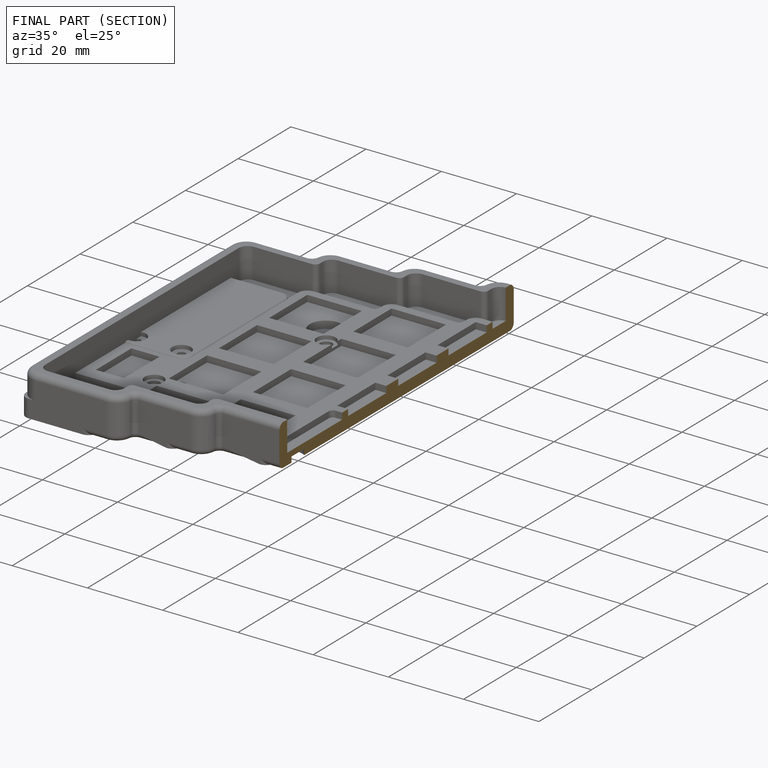
[diagram: finished part — half-section view (interior)]
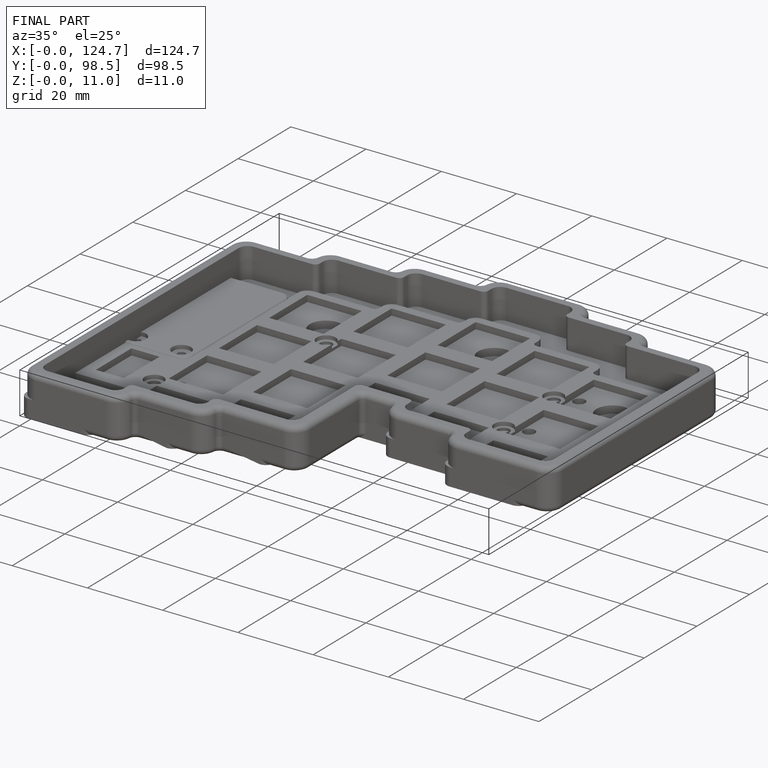
[diagram: finished part — iso view with bounding-box wireframe]
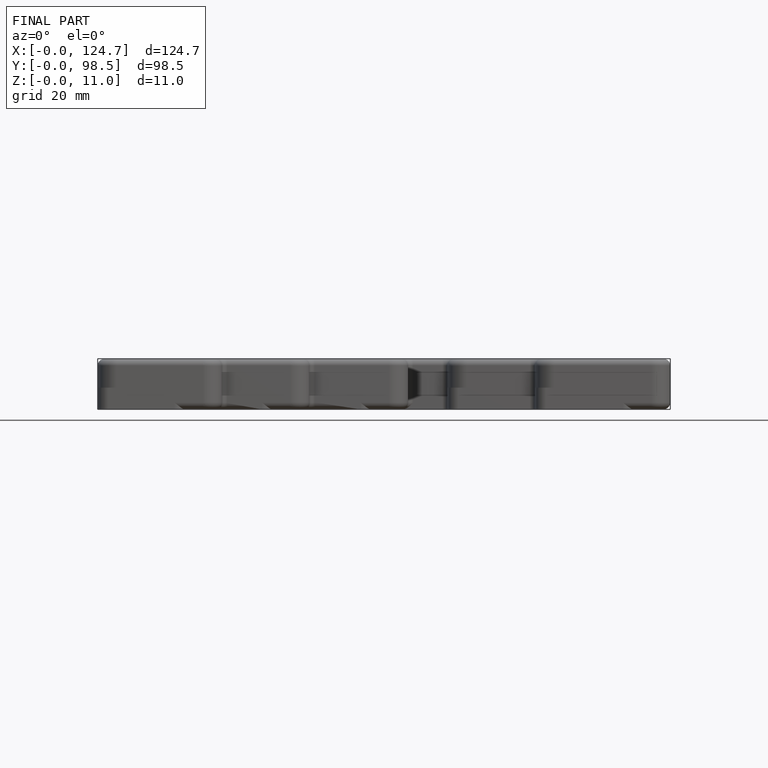
[diagram: finished part — front view with bounding-box wireframe]
